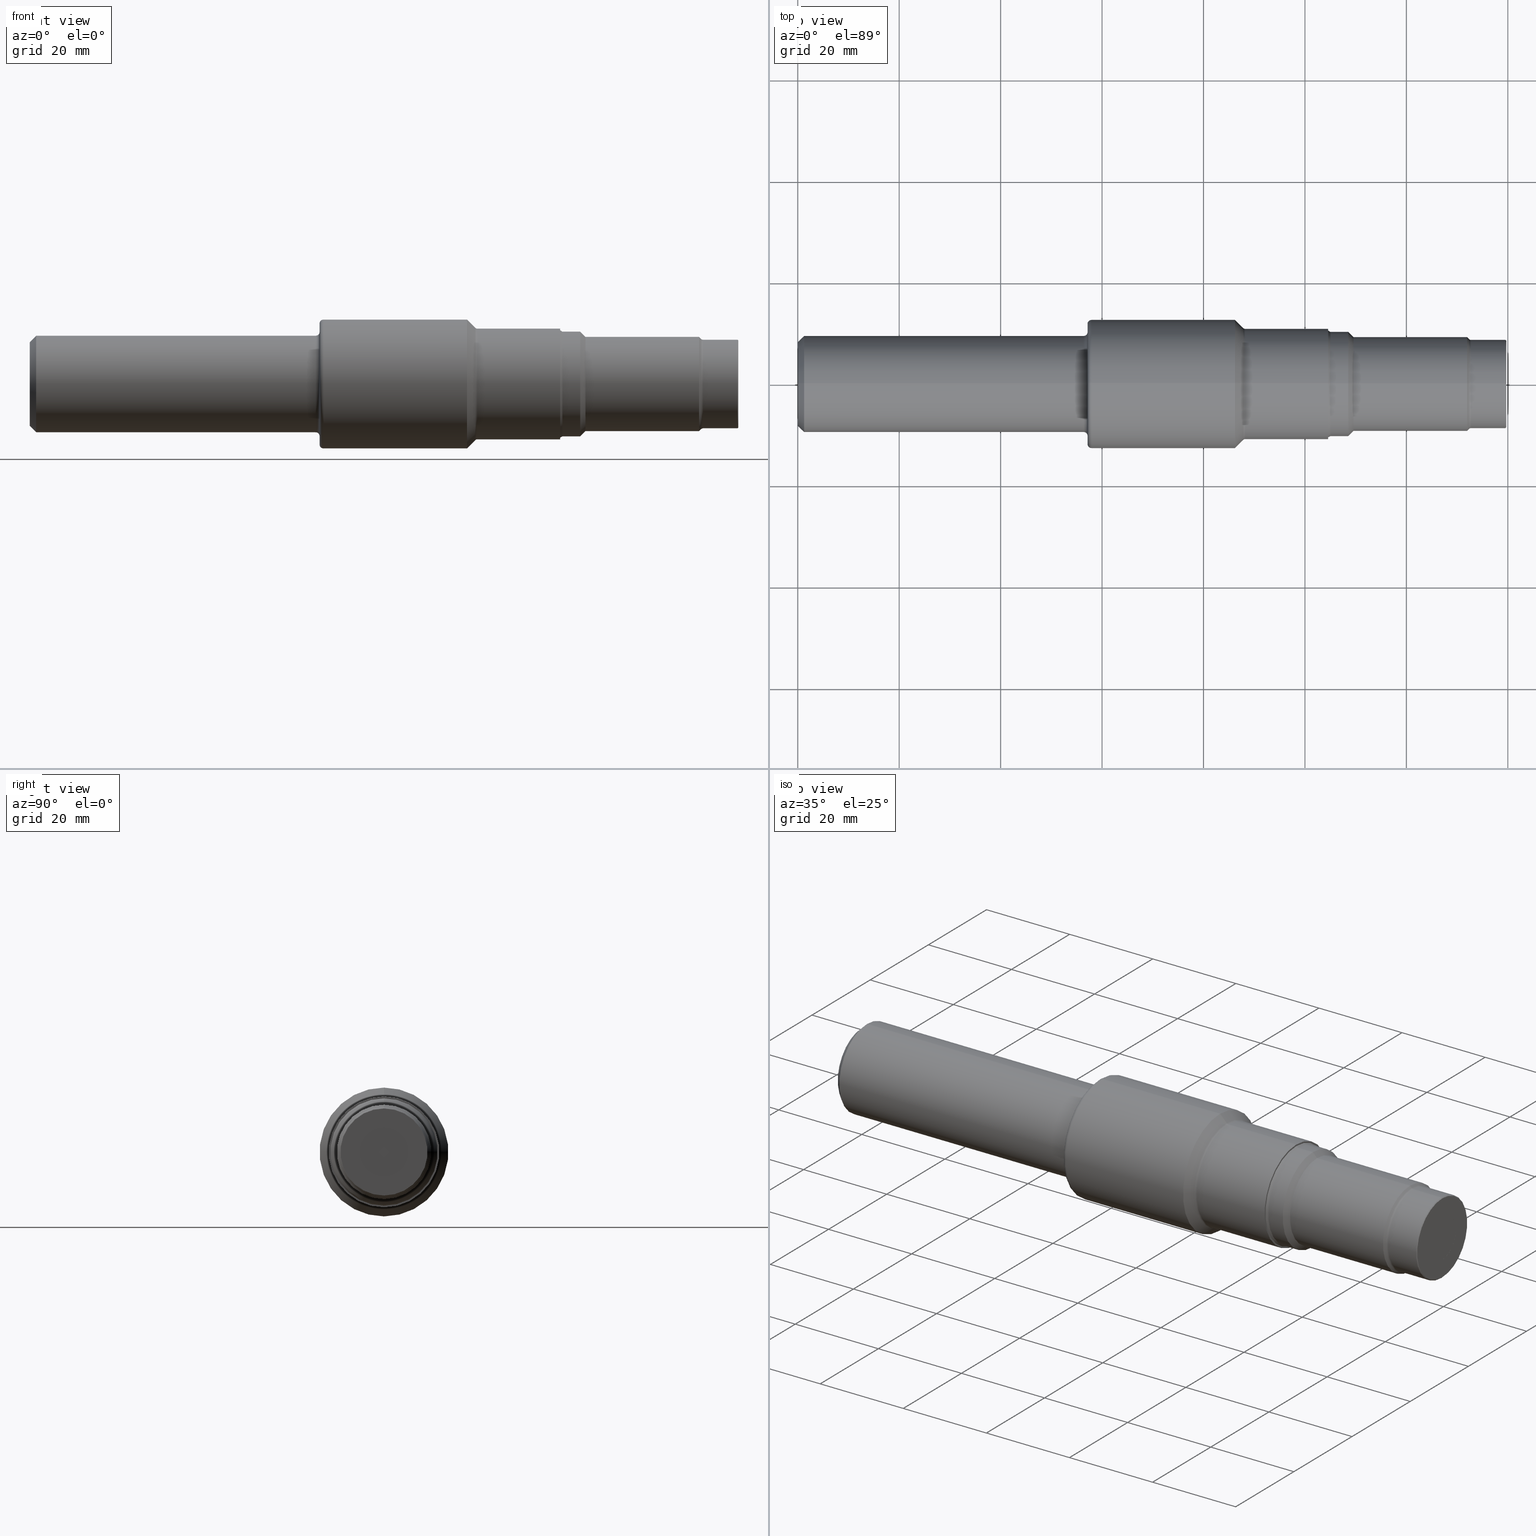
[diagram: canonical four-view strip — front | top / right | iso, engineering-drawing reading convention]
A machine part, canonical four-view strip (front | top / right | iso — engineering-drawing reading convention). The complete STEP part file that produces these views, byte-faithful:
ISO-10303-21;
HEADER;
FILE_DESCRIPTION (( 'STEP AP214' ),
    '1' );
FILE_NAME ('T-11A-FINISH-X8.STEP',
    '2022-06-16T17:11:44',
    ( '' ),
    ( '' ),
    'SwSTEP 2.0',
    'SolidWorks 2020',
    '' );
FILE_SCHEMA (( 'AUTOMOTIVE_DESIGN' ));
ENDSEC;

DATA;
#1 = DIRECTION ( 'NONE',  ( -1.000000000000000000, -0.000000000000000000, -0.000000000000000000 ) ) ;
#2 = AXIS2_PLACEMENT_3D ( 'NONE', #988, #816, #179 ) ;
#3 = CARTESIAN_POINT ( 'NONE',  ( 4.313900000000002066, 0.000000000000000000, 0.000000000000000000 ) ) ;
#4 = PLANE ( 'NONE',  #975 ) ;
#5 = CARTESIAN_POINT ( 'NONE',  ( 5.226712698372208976, 0.000000000000000000, 0.000000000000000000 ) ) ;
#6 = EDGE_CURVE ( 'NONE', #547, #35, #124, .T. ) ;
#7 = CYLINDRICAL_SURFACE ( 'NONE', #243, 0.4063999999999999835 ) ;
#8 = EDGE_CURVE ( 'NONE', #607, #383, #786, .T. ) ;
#9 =( GEOMETRIC_REPRESENTATION_CONTEXT ( 3 ) GLOBAL_UNCERTAINTY_ASSIGNED_CONTEXT ( ( #241 ) ) GLOBAL_UNIT_ASSIGNED_CONTEXT ( ( #286, #290, #535 ) ) REPRESENTATION_CONTEXT ( 'NONE', 'WORKASPACE' ) );
#10 = DIRECTION ( 'NONE',  ( 0.7071067811865489050, 8.659560562354915602E-17, 0.7071067811865461294 ) ) ;
#11 = AXIS2_PLACEMENT_3D ( 'NONE', #916, #194, #517 ) ;
#12 = VERTEX_POINT ( 'NONE', #724 ) ;
#13 = FILL_AREA_STYLE_COLOUR ( '', #496 ) ;
#14 = EDGE_CURVE ( 'NONE', #61, #438, #849, .T. ) ;
#15 = CYLINDRICAL_SURFACE ( 'NONE', #404, 0.3438999999999997059 ) ;
#16 = CARTESIAN_POINT ( 'NONE',  ( 5.500000000000000000, 0.000000000000000000, 0.000000000000000000 ) ) ;
#17 = DIRECTION ( 'NONE',  ( -0.7071067811865471286, 0.000000000000000000, 0.7071067811865479058 ) ) ;
#18 = ORIENTED_EDGE ( 'NONE', *, *, #685, .T. ) ;
#19 = DIRECTION ( 'NONE',  ( -1.000000000000000000, -0.000000000000000000, -0.000000000000000000 ) ) ;
#20 = AXIS2_PLACEMENT_3D ( 'NONE', #890, #192, #903 ) ;
#21 = FACE_OUTER_BOUND ( 'NONE', #433, .T. ) ;
#22 = VERTEX_POINT ( 'NONE', #648 ) ;
#23 = EDGE_LOOP ( 'NONE', ( #104, #740, #467, #114 ) ) ;
#24 = AXIS2_PLACEMENT_3D ( 'NONE', #518, #761, #279 ) ;
#25 = CARTESIAN_POINT ( 'NONE',  ( 5.500000000000000000, 4.174820938293329302E-17, -0.3379000000000003667 ) ) ;
#26 = TOROIDAL_SURFACE ( 'NONE', #819, 0.4519000000000000239, 0.02199999999999997097 ) ;
#27 = DIRECTION ( 'NONE',  ( -1.000000000000000000, -0.000000000000000000, -0.000000000000000000 ) ) ;
#28 = ADVANCED_FACE ( 'NONE', ( #889 ), #653, .T. ) ;
#29 = CARTESIAN_POINT ( 'NONE',  ( 3.458056349186104050, 0.000000000000000000, 0.4363436508138959780 ) ) ;
#30 = CARTESIAN_POINT ( 'NONE',  ( 3.394400000000000084, 0.000000000000000000, 0.000000000000000000 ) ) ;
#31 = ORIENTED_EDGE ( 'NONE', *, *, #621, .F. ) ;
#32 = VERTEX_POINT ( 'NONE', #410 ) ;
#33 = CARTESIAN_POINT ( 'NONE',  ( 4.313900000000002066, 0.000000000000000000, 0.3659999999999999920 ) ) ;
#34 = DIRECTION ( 'NONE',  ( 0.000000000000000000, 0.000000000000000000, 1.000000000000000000 ) ) ;
#35 = VERTEX_POINT ( 'NONE', #403 ) ;
#36 = ORIENTED_EDGE ( 'NONE', *, *, #201, .F. ) ;
#37 = CARTESIAN_POINT ( 'NONE',  ( 4.117499999999999716, 0.000000000000000000, 0.4299000000000000599 ) ) ;
#38 = DIMENSIONAL_EXPONENTS ( 1.000000000000000000, 0.000000000000000000, 0.000000000000000000, 0.000000000000000000, 0.000000000000000000, 0.000000000000000000, 0.000000000000000000 ) ;
#39 = CIRCLE ( 'NONE', #1033, 0.3248500000000002497 ) ;
#40 = DIRECTION ( 'NONE',  ( 0.000000000000000000, 0.000000000000000000, 1.000000000000000000 ) ) ;
#41 = AXIS2_PLACEMENT_3D ( 'NONE', #102, #430, #182 ) ;
#42 = ORIENTED_EDGE ( 'NONE', *, *, #315, .F. ) ;
#43 = ORIENTED_EDGE ( 'NONE', *, *, #945, .T. ) ;
#44 = EDGE_CURVE ( 'NONE', #50, #729, #972, .T. ) ;
#45 = CARTESIAN_POINT ( 'NONE',  ( 2.220000000000000195, 0.000000000000000000, 0.3748500000000000165 ) ) ;
#46 = VERTEX_POINT ( 'NONE', #657 ) ;
#47 = EDGE_CURVE ( 'NONE', #59, #680, #95, .T. ) ;
#48 = DIRECTION ( 'NONE',  ( -1.000000000000000000, -0.000000000000000000, -0.000000000000000000 ) ) ;
#49 = DIRECTION ( 'NONE',  ( -0.7071067811865305863, 8.659560562355139934E-17, -0.7071067811865644481 ) ) ;
#50 = VERTEX_POINT ( 'NONE', #754 ) ;
#51 = DIRECTION ( 'NONE',  ( -1.000000000000000000, -0.000000000000000000, -0.000000000000000000 ) ) ;
#52 = EDGE_CURVE ( 'NONE', #46, #616, #112, .T. ) ;
#53 = ORIENTED_EDGE ( 'NONE', *, *, #678, .F. ) ;
#54 = CARTESIAN_POINT ( 'NONE',  ( 2.279999999999999805, 0.000000000000000000, 0.5000000000000000000 ) ) ;
#55 = CIRCLE ( 'NONE', #703, 0.3379000000000003667 ) ;
#56 = CARTESIAN_POINT ( 'NONE',  ( 4.117499999999999716, 0.000000000000000000, 0.000000000000000000 ) ) ;
#57 = ADVANCED_FACE ( 'NONE', ( #423 ), #662, .T. ) ;
#58 = MECHANICAL_DESIGN_GEOMETRIC_PRESENTATION_REPRESENTATION (  '', ( #374 ), #9 ) ;
#59 = VERTEX_POINT ( 'NONE', #825 ) ;
#60 = LENGTH_MEASURE_WITH_UNIT ( LENGTH_MEASURE( 0.02539999999999999897 ), #220 );
#61 = VERTEX_POINT ( 'NONE', #29 ) ;
#62 = DIRECTION ( 'NONE',  ( 0.000000000000000000, 0.000000000000000000, 1.000000000000000000 ) ) ;
#63 = CARTESIAN_POINT ( 'NONE',  ( 5.493999999999999773, 0.000000000000000000, 0.3438999999999999835 ) ) ;
#64 = CARTESIAN_POINT ( 'NONE',  ( 5.226712698372208976, 0.000000000000000000, 0.000000000000000000 ) ) ;
#65 = DIRECTION ( 'NONE',  ( -1.000000000000000000, -0.000000000000000000, -0.000000000000000000 ) ) ;
#66 = LINE ( 'NONE', #149, #950 ) ;
#67 = ADVANCED_FACE ( 'NONE', ( #745 ), #188, .T. ) ;
#68 = LINE ( 'NONE', #1040, #582 ) ;
#69 =( NAMED_UNIT ( * ) PLANE_ANGLE_UNIT ( ) SI_UNIT ( $, .RADIAN. ) );
#70 = CARTESIAN_POINT ( 'NONE',  ( 5.500000000000000000, 0.000000000000000000, 0.000000000000000000 ) ) ;
#71 = VERTEX_POINT ( 'NONE', #340 ) ;
#72 = FACE_OUTER_BOUND ( 'NONE', #448, .T. ) ;
#73 = TOROIDAL_SURFACE ( 'NONE', #480, 0.3659000000000000030, 0.02200000000000046363 ) ;
#74 = PRODUCT ( 'T-11A-FINISH-X8', 'T-11A-FINISH-X8', '', ( #637 ) ) ;
#75 = DIRECTION ( 'NONE',  ( 0.000000000000000000, 0.000000000000000000, 1.000000000000000000 ) ) ;
#76 = ADVANCED_FACE ( 'NONE', ( #499 ), #752, .T. ) ;
#77 = CARTESIAN_POINT ( 'NONE',  ( 3.473612698372208207, 0.000000000000000000, 0.000000000000000000 ) ) ;
#78 = ORIENTED_EDGE ( 'NONE', *, *, #370, .T. ) ;
#79 = CARTESIAN_POINT ( 'NONE',  ( 0.000000000000000000, 0.000000000000000000, 0.000000000000000000 ) ) ;
#80 = DIRECTION ( 'NONE',  ( -1.000000000000000000, -0.000000000000000000, -0.000000000000000000 ) ) ;
#81 = CARTESIAN_POINT ( 'NONE',  ( 0.000000000000000000, 0.000000000000000000, 0.4299000000000000599 ) ) ;
#82 = DIRECTION ( 'NONE',  ( -1.000000000000000000, -0.000000000000000000, -0.000000000000000000 ) ) ;
#83 = CIRCLE ( 'NONE', #949, 0.3659999999999999920 ) ;
#84 = DIRECTION ( 'NONE',  ( -1.000000000000000000, -0.000000000000000000, -0.000000000000000000 ) ) ;
#85 = FACE_OUTER_BOUND ( 'NONE', #799, .T. ) ;
#86 = DIRECTION ( 'NONE',  ( 0.000000000000000000, 0.000000000000000000, 1.000000000000000000 ) ) ;
#87 = ADVANCED_FACE ( 'NONE', ( #21 ), #677, .T. ) ;
#88 = CIRCLE ( 'NONE', #717, 0.02999999999999995379 ) ;
#89 = PLANE ( 'NONE',  #2 ) ;
#90 = VECTOR ( 'NONE', #1042, 39.37007874015748143 ) ;
#91 = DIRECTION ( 'NONE',  ( -0.7071067811865612285, 0.000000000000000000, 0.7071067811865336949 ) ) ;
#92 = ADVANCED_FACE ( 'NONE', ( #820 ), #349, .T. ) ;
#93 = EDGE_LOOP ( 'NONE', ( #425, #78, #131, #311 ) ) ;
#94 = CARTESIAN_POINT ( 'NONE',  ( 0.000000000000000000, 4.482207284879313290E-17, -0.3659999999999999920 ) ) ;
#95 = LINE ( 'NONE', #437, #773 ) ;
#96 = DIRECTION ( 'NONE',  ( -1.000000000000000000, -0.000000000000000000, -0.000000000000000000 ) ) ;
#97 = ORIENTED_EDGE ( 'NONE', *, *, #52, .T. ) ;
#98 = CARTESIAN_POINT ( 'NONE',  ( 5.226712698372208976, 0.000000000000000000, 0.3659000000000000030 ) ) ;
#99 = EDGE_CURVE ( 'NONE', #839, #1017, #55, .T. ) ;
#100 = CARTESIAN_POINT ( 'NONE',  ( 5.211156349186103931, 0.000000000000000000, 0.000000000000000000 ) ) ;
#101 = LINE ( 'NONE', #511, #884 ) ;
#102 = CARTESIAN_POINT ( 'NONE',  ( 3.473612698372208207, 0.000000000000000000, 0.4519000000000000239 ) ) ;
#103 = EDGE_LOOP ( 'NONE', ( #31, #815, #205, #224 ) ) ;
#104 = ORIENTED_EDGE ( 'NONE', *, *, #249, .T. ) ;
#105 = AXIS2_PLACEMENT_3D ( 'NONE', #691, #918, #195 ) ;
#106 = AXIS2_PLACEMENT_3D ( 'NONE', #530, #129, #706 ) ;
#107 = CARTESIAN_POINT ( 'NONE',  ( 0.000000000000000000, 0.000000000000000000, 0.3659999999999999920 ) ) ;
#108 = CARTESIAN_POINT ( 'NONE',  ( 4.134993713156444706, 0.000000000000000000, 0.000000000000000000 ) ) ;
#109 = ORIENTED_EDGE ( 'NONE', *, *, #379, .F. ) ;
#110 = VERTEX_POINT ( 'NONE', #266 ) ;
#111 = CARTESIAN_POINT ( 'NONE',  ( 3.458056349186104050, 5.343668552975080613E-17, -0.4363436508138959780 ) ) ;
#112 = LINE ( 'NONE', #33, #868 ) ;
#113 = EDGE_CURVE ( 'NONE', #32, #867, #835, .T. ) ;
#114 = ORIENTED_EDGE ( 'NONE', *, *, #6, .F. ) ;
#115 = EDGE_LOOP ( 'NONE', ( #296, #255 ) ) ;
#116 = CONICAL_SURFACE ( 'NONE', #931, 0.4363436508138960335, 0.7853981633974488341 ) ;
#117 = VECTOR ( 'NONE', #153, 39.37007874015748854 ) ;
#118 = CARTESIAN_POINT ( 'NONE',  ( 0.000000000000000000, 0.000000000000000000, 0.000000000000000000 ) ) ;
#119 = TOROIDAL_SURFACE ( 'NONE', #862, 0.4048500000000000432, 0.02999999999999998848 ) ;
#120 = EDGE_LOOP ( 'NONE', ( #513, #851, #793, #1013 ) ) ;
#121 = EDGE_CURVE ( 'NONE', #1043, #204, #554, .T. ) ;
#122 = ORIENTED_EDGE ( 'NONE', *, *, #971, .T. ) ;
#123 = DIRECTION ( 'NONE',  ( -0.8660254037844304920, 6.123233995736938599E-17, -0.5000000000000140998 ) ) ;
#124 = CIRCLE ( 'NONE', #157, 0.03000000000000002318 ) ;
#125 = AXIS2_PLACEMENT_3D ( 'NONE', #366, #698, #942 ) ;
#126 = CIRCLE ( 'NONE', #718, 0.4063999999999999835 ) ;
#127 = ORIENTED_EDGE ( 'NONE', *, *, #436, .T. ) ;
#128 = DIRECTION ( 'NONE',  ( -1.000000000000000000, 0.000000000000000000, -0.000000000000000000 ) ) ;
#129 = DIRECTION ( 'NONE',  ( -1.000000000000000000, -0.000000000000000000, -0.000000000000000000 ) ) ;
#130 = ORIENTED_EDGE ( 'NONE', *, *, #99, .T. ) ;
#131 = ORIENTED_EDGE ( 'NONE', *, *, #654, .F. ) ;
#132 = LINE ( 'NONE', #848, #991 ) ;
#133 = ADVANCED_FACE ( 'NONE', ( #910 ), #358, .T. ) ;
#134 = DIRECTION ( 'NONE',  ( 1.000000000000000000, 0.000000000000000000, 0.000000000000000000 ) ) ;
#135 = FILL_AREA_STYLE_COLOUR ( '', #956 ) ;
#136 = ORIENTED_EDGE ( 'NONE', *, *, #574, .T. ) ;
#137 = ORIENTED_EDGE ( 'NONE', *, *, #44, .T. ) ;
#138 = CIRCLE ( 'NONE', #444, 0.3659999999999999920 ) ;
#139 = MECHANICAL_DESIGN_GEOMETRIC_PRESENTATION_REPRESENTATION (  '', ( #900 ), #155 ) ;
#140 = FACE_OUTER_BOUND ( 'NONE', #609, .T. ) ;
#141 = DIRECTION ( 'NONE',  ( 0.000000000000000000, 0.000000000000000000, 1.000000000000000000 ) ) ;
#142 = CARTESIAN_POINT ( 'NONE',  ( 5.211156349186103931, 0.000000000000000000, 0.3503436508138949579 ) ) ;
#143 = VECTOR ( 'NONE', #541, 39.37007874015748143 ) ;
#144 = AXIS2_PLACEMENT_3D ( 'NONE', #947, #552, #1035 ) ;
#145 = EDGE_LOOP ( 'NONE', ( #316, #938 ) ) ;
#146 = DIRECTION ( 'NONE',  ( 0.000000000000000000, 0.000000000000000000, 1.000000000000000000 ) ) ;
#147 = DIRECTION ( 'NONE',  ( 0.000000000000000000, 0.000000000000000000, 1.000000000000000000 ) ) ;
#148 = EDGE_LOOP ( 'NONE', ( #398, #230, #394, #833 ) ) ;
#149 = CARTESIAN_POINT ( 'NONE',  ( 4.134993713156444706, 0.000000000000000000, 0.4063999999999999835 ) ) ;
#150 = DIRECTION ( 'NONE',  ( 0.000000000000000000, 0.000000000000000000, 1.000000000000000000 ) ) ;
#151 = FACE_OUTER_BOUND ( 'NONE', #362, .T. ) ;
#152 = ORIENTED_EDGE ( 'NONE', *, *, #531, .T. ) ;
#153 = DIRECTION ( 'NONE',  ( -0.7071067811865612285, 8.659560562354763993E-17, -0.7071067811865336949 ) ) ;
#154 = EDGE_CURVE ( 'NONE', #607, #710, #101, .T. ) ;
#155 =( GEOMETRIC_REPRESENTATION_CONTEXT ( 3 ) GLOBAL_UNCERTAINTY_ASSIGNED_CONTEXT ( ( #384 ) ) GLOBAL_UNIT_ASSIGNED_CONTEXT ( ( #381, #69, #526 ) ) REPRESENTATION_CONTEXT ( 'NONE', 'WORKASPACE' ) );
#156 = DIRECTION ( 'NONE',  ( -0.000000000000000000, 1.000000000000000000, 1.224646799147353207E-16 ) ) ;
#157 = AXIS2_PLACEMENT_3D ( 'NONE', #492, #328, #390 ) ;
#158 = DIRECTION ( 'NONE',  ( 0.000000000000000000, 0.000000000000000000, 1.000000000000000000 ) ) ;
#159 = CIRCLE ( 'NONE', #753, 0.4699999999999999734 ) ;
#160 = DIRECTION ( 'NONE',  ( 0.000000000000000000, 0.000000000000000000, 1.000000000000000000 ) ) ;
#161 = AXIS2_PLACEMENT_3D ( 'NONE', #354, #456, #439 ) ;
#162 = CIRCLE ( 'NONE', #803, 0.03000000000000002318 ) ;
#163 = CARTESIAN_POINT ( 'NONE',  ( 3.394400000000000084, 0.000000000000000000, 0.000000000000000000 ) ) ;
#164 = ADVANCED_FACE ( 'NONE', ( #831 ), #601, .T. ) ;
#165 = DIRECTION ( 'NONE',  ( 0.000000000000000000, 0.000000000000000000, 1.000000000000000000 ) ) ;
#166 = DIRECTION ( 'NONE',  ( 0.000000000000000000, 0.000000000000000000, 1.000000000000000000 ) ) ;
#167 = DIRECTION ( 'NONE',  ( -1.000000000000000000, -0.000000000000000000, -0.000000000000000000 ) ) ;
#168 = LINE ( 'NONE', #415, #744 ) ;
#169 = EDGE_CURVE ( 'NONE', #713, #769, #704, .T. ) ;
#170 = ORIENTED_EDGE ( 'NONE', *, *, #47, .F. ) ;
#171 = CARTESIAN_POINT ( 'NONE',  ( 0.000000000000000000, 0.000000000000000000, 0.3748500000000000165 ) ) ;
#172 = AXIS2_PLACEMENT_3D ( 'NONE', #708, #1029, #871 ) ;
#173 = DIRECTION ( 'NONE',  ( 0.000000000000000000, 0.000000000000000000, -1.000000000000000000 ) ) ;
#174 = TOROIDAL_SURFACE ( 'NONE', #812, 0.4699999999999999734, 0.02999999999999998848 ) ;
#175 = LINE ( 'NONE', #94, #229 ) ;
#176 = CARTESIAN_POINT ( 'NONE',  ( 0.000000000000000000, 0.000000000000000000, 0.000000000000000000 ) ) ;
#177 = ORIENTED_EDGE ( 'NONE', *, *, #580, .F. ) ;
#178 = AXIS2_PLACEMENT_3D ( 'NONE', #5, #813, #86 ) ;
#179 = DIRECTION ( 'NONE',  ( -0.000000000000000000, 0.000000000000000000, 1.000000000000000000 ) ) ;
#180 = VECTOR ( 'NONE', #876, 39.37007874015748143 ) ;
#181 = CARTESIAN_POINT ( 'NONE',  ( 3.458056349186104050, 0.000000000000000000, 0.000000000000000000 ) ) ;
#182 = DIRECTION ( 'NONE',  ( 0.000000000000000000, 0.000000000000000000, -1.000000000000000000 ) ) ;
#183 = ORIENTED_EDGE ( 'NONE', *, *, #730, .F. ) ;
#184 = EDGE_CURVE ( 'NONE', #447, #735, #462, .T. ) ;
#185 = CARTESIAN_POINT ( 'NONE',  ( 0.000000000000000000, 0.000000000000000000, 0.000000000000000000 ) ) ;
#186 = CARTESIAN_POINT ( 'NONE',  ( 4.313900000000002066, 0.000000000000000000, 0.000000000000000000 ) ) ;
#187 = DIMENSIONAL_EXPONENTS ( 1.000000000000000000, 0.000000000000000000, 0.000000000000000000, 0.000000000000000000, 0.000000000000000000, 0.000000000000000000, 0.000000000000000000 ) ;
#188 = CYLINDRICAL_SURFACE ( 'NONE', #309, 0.3438999999999997059 ) ;
#189 = ORIENTED_EDGE ( 'NONE', *, *, #500, .T. ) ;
#190 = ORIENTED_EDGE ( 'NONE', *, *, #414, .T. ) ;
#191 = EDGE_CURVE ( 'NONE', #774, #35, #159, .T. ) ;
#192 = DIRECTION ( 'NONE',  ( -1.000000000000000000, -0.000000000000000000, -0.000000000000000000 ) ) ;
#193 = AXIS2_PLACEMENT_3D ( 'NONE', #800, #1037, #644 ) ;
#194 = DIRECTION ( 'NONE',  ( -0.000000000000000000, 1.000000000000000000, 1.224646799147353207E-16 ) ) ;
#195 = DIRECTION ( 'NONE',  ( 0.000000000000000000, 0.000000000000000000, 1.000000000000000000 ) ) ;
#196 = ORIENTED_EDGE ( 'NONE', *, *, #536, .F. ) ;
#197 = ORIENTED_EDGE ( 'NONE', *, *, #154, .F. ) ;
#198 = CLOSED_SHELL ( 'NONE', ( #563, #802, #320, #953, #217, #711, #723, #164, #906, #872, #865, #853, #490, #615, #67, #386, #516, #762, #936, #576, #396, #808, #569, #544, #87, #716, #92, #626, #914, #57, #339, #133, #465, #352, #308, #964, #28, #76, #377 ) ) ;
#199 = EDGE_CURVE ( 'NONE', #1017, #839, #293, .T. ) ;
#200 = CIRCLE ( 'NONE', #787, 0.02200000000000047404 ) ;
#201 = EDGE_CURVE ( 'NONE', #867, #873, #926, .T. ) ;
#202 = DIRECTION ( 'NONE',  ( 0.000000000000000000, 0.000000000000000000, 1.000000000000000000 ) ) ;
#203 = SURFACE_STYLE_USAGE ( .BOTH. , #606 ) ;
#204 = VERTEX_POINT ( 'NONE', #45 ) ;
#205 = ORIENTED_EDGE ( 'NONE', *, *, #6, .T. ) ;
#206 = CARTESIAN_POINT ( 'NONE',  ( 5.211156349186103931, 0.000000000000000000, 0.000000000000000000 ) ) ;
#207 = EDGE_CURVE ( 'NONE', #46, #1022, #432, .T. ) ;
#208 = DIRECTION ( 'NONE',  ( 0.000000000000000000, 0.000000000000000000, 1.000000000000000000 ) ) ;
#209 = ORIENTED_EDGE ( 'NONE', *, *, #580, .T. ) ;
#210 = FACE_OUTER_BOUND ( 'NONE', #502, .T. ) ;
#211 = DIRECTION ( 'NONE',  ( -1.000000000000000000, -0.000000000000000000, -0.000000000000000000 ) ) ;
#212 = ORIENTED_EDGE ( 'NONE', *, *, #760, .F. ) ;
#213 = TOROIDAL_SURFACE ( 'NONE', #734, 0.4048500000000000432, 0.02999999999999998848 ) ;
#214 = DIRECTION ( 'NONE',  ( 0.000000000000000000, 0.000000000000000000, 1.000000000000000000 ) ) ;
#215 = AXIS2_PLACEMENT_3D ( 'NONE', #387, #555, #715 ) ;
#216 = ORIENTED_EDGE ( 'NONE', *, *, #1015, .F. ) ;
#217 = ADVANCED_FACE ( 'NONE', ( #929 ), #454, .T. ) ;
#218 = MANIFOLD_SOLID_BREP ( 'Body', #198 ) ;
#219 = DIRECTION ( 'NONE',  ( -1.000000000000000000, -0.000000000000000000, -0.000000000000000000 ) ) ;
#220 =( LENGTH_UNIT ( ) NAMED_UNIT ( * ) SI_UNIT ( $, .METRE. ) );
#221 = CARTESIAN_POINT ( 'NONE',  ( 2.279999999999999805, 0.000000000000000000, 0.000000000000000000 ) ) ;
#222 = ORIENTED_EDGE ( 'NONE', *, *, #654, .T. ) ;
#223 = DIRECTION ( 'NONE',  ( 0.000000000000000000, 0.000000000000000000, 1.000000000000000000 ) ) ;
#224 = ORIENTED_EDGE ( 'NONE', *, *, #191, .F. ) ;
#225 = AXIS2_PLACEMENT_3D ( 'NONE', #649, #247, #242 ) ;
#226 = DIRECTION ( 'NONE',  ( 0.000000000000000000, -1.224646799147352221E-16, 1.000000000000000000 ) ) ;
#227 = EDGE_CURVE ( 'NONE', #32, #512, #779, .T. ) ;
#228 = DIRECTION ( 'NONE',  ( 1.000000000000000000, 0.000000000000000000, 0.000000000000000000 ) ) ;
#229 = VECTOR ( 'NONE', #265, 39.37007874015748143 ) ;
#230 = ORIENTED_EDGE ( 'NONE', *, *, #8, .F. ) ;
#231 = CARTESIAN_POINT ( 'NONE',  ( 2.220000000000000195, 0.000000000000000000, 0.000000000000000000 ) ) ;
#232 = DIRECTION ( 'NONE',  ( -1.000000000000000000, -0.000000000000000000, -0.000000000000000000 ) ) ;
#233 = FACE_OUTER_BOUND ( 'NONE', #702, .T. ) ;
#234 = EDGE_CURVE ( 'NONE', #204, #1043, #608, .T. ) ;
#235 = EDGE_LOOP ( 'NONE', ( #177, #763, #902, #1008 ) ) ;
#236 = CARTESIAN_POINT ( 'NONE',  ( 4.134993713156444706, 0.000000000000000000, 0.000000000000000000 ) ) ;
#237 = PRODUCT_DEFINITION_SHAPE ( 'NONE', 'NONE',  #506 ) ;
#238 = DIRECTION ( 'NONE',  ( -0.000000000000000000, 1.000000000000000000, 1.224646799147353207E-16 ) ) ;
#239 = AXIS2_PLACEMENT_3D ( 'NONE', #350, #671, #329 ) ;
#240 = ORIENTED_EDGE ( 'NONE', *, *, #795, .F. ) ;
#241 = UNCERTAINTY_MEASURE_WITH_UNIT (LENGTH_MEASURE( 1.000000000000000082E-05 ), #286, 'distance_accuracy_value', 'NONE');
#242 = DIRECTION ( 'NONE',  ( 0.000000000000000000, 0.000000000000000000, 1.000000000000000000 ) ) ;
#243 = AXIS2_PLACEMENT_3D ( 'NONE', #405, #564, #794 ) ;
#244 = EDGE_CURVE ( 'NONE', #461, #547, #1038, .T. ) ;
#245 = CARTESIAN_POINT ( 'NONE',  ( 0.000000000000000000, 4.284426826817016740E-17, 0.3248500000000002497 ) ) ;
#246 = ORIENTED_EDGE ( 'NONE', *, *, #1010, .T. ) ;
#247 = DIRECTION ( 'NONE',  ( -1.000000000000000000, -0.000000000000000000, -0.000000000000000000 ) ) ;
#248 = CIRCLE ( 'NONE', #1007, 0.4048500000000000432 ) ;
#249 = EDGE_CURVE ( 'NONE', #547, #461, #869, .T. ) ;
#250 = CARTESIAN_POINT ( 'NONE',  ( 3.458056349186104050, 0.000000000000000000, 0.000000000000000000 ) ) ;
#251 = DIRECTION ( 'NONE',  ( 0.000000000000000000, 0.000000000000000000, -1.000000000000000000 ) ) ;
#252 = ORIENTED_EDGE ( 'NONE', *, *, #291, .T. ) ;
#253 = FACE_BOUND ( 'NONE', #920, .T. ) ;
#254 = DIRECTION ( 'NONE',  ( -1.000000000000000000, -0.000000000000000000, -0.000000000000000000 ) ) ;
#255 = ORIENTED_EDGE ( 'NONE', *, *, #291, .F. ) ;
#256 = EDGE_LOOP ( 'NONE', ( #43, #269, #834, #911 ) ) ;
#257 = VECTOR ( 'NONE', #84, 39.37007874015748143 ) ;
#258 = DIRECTION ( 'NONE',  ( 0.000000000000000000, 0.000000000000000000, 1.000000000000000000 ) ) ;
#259 = DIRECTION ( 'NONE',  ( 0.000000000000000000, 0.000000000000000000, 1.000000000000000000 ) ) ;
#260 = CARTESIAN_POINT ( 'NONE',  ( 5.211156349186103931, 0.000000000000000000, 0.000000000000000000 ) ) ;
#261 = ORIENTED_EDGE ( 'NONE', *, *, #980, .F. ) ;
#262 = AXIS2_PLACEMENT_3D ( 'NONE', #566, #572, #158 ) ;
#263 = CIRCLE ( 'NONE', #106, 0.4363436508138960335 ) ;
#264 = CARTESIAN_POINT ( 'NONE',  ( 0.000000000000000000, 0.000000000000000000, 0.000000000000000000 ) ) ;
#265 = DIRECTION ( 'NONE',  ( -1.000000000000000000, -0.000000000000000000, -0.000000000000000000 ) ) ;
#266 = CARTESIAN_POINT ( 'NONE',  ( 4.117499999999999716, 5.100653918448725907E-17, -0.4164999999999999813 ) ) ;
#267 = EDGE_CURVE ( 'NONE', #664, #527, #411, .T. ) ;
#268 = CARTESIAN_POINT ( 'NONE',  ( 5.500000000000000000, 0.000000000000000000, 0.3379000000000003667 ) ) ;
#269 = ORIENTED_EDGE ( 'NONE', *, *, #597, .T. ) ;
#270 = ORIENTED_EDGE ( 'NONE', *, *, #971, .F. ) ;
#271 = CYLINDRICAL_SURFACE ( 'NONE', #493, 0.3659999999999999920 ) ;
#272 = DIRECTION ( 'NONE',  ( 0.000000000000000000, 0.000000000000000000, 1.000000000000000000 ) ) ;
#273 = DIRECTION ( 'NONE',  ( -1.000000000000000000, -0.000000000000000000, -0.000000000000000000 ) ) ;
#274 = DIRECTION ( 'NONE',  ( -1.000000000000000000, -0.000000000000000000, -0.000000000000000000 ) ) ;
#275 = ORIENTED_EDGE ( 'NONE', *, *, #121, .T. ) ;
#276 = EDGE_CURVE ( 'NONE', #204, #22, #88, .T. ) ;
#277 = AXIS2_PLACEMENT_3D ( 'NONE', #163, #952, #150 ) ;
#278 = VECTOR ( 'NONE', #520, 39.37007874015748143 ) ;
#279 = DIRECTION ( 'NONE',  ( 0.000000000000000000, 0.000000000000000000, -1.000000000000000000 ) ) ;
#280 = SURFACE_STYLE_FILL_AREA ( #993 ) ;
#281 = ORIENTED_EDGE ( 'NONE', *, *, #669, .T. ) ;
#282 = ORIENTED_EDGE ( 'NONE', *, *, #841, .F. ) ;
#283 = EDGE_CURVE ( 'NONE', #438, #61, #263, .T. ) ;
#284 = AXIS2_PLACEMENT_3D ( 'NONE', #285, #935, #612 ) ;
#285 = CARTESIAN_POINT ( 'NONE',  ( 2.279999999999999805, 0.000000000000000000, 0.000000000000000000 ) ) ;
#286 =( CONVERSION_BASED_UNIT ( 'INCH', #1011 ) LENGTH_UNIT ( ) NAMED_UNIT ( #187 ) );
#287 = ORIENTED_EDGE ( 'NONE', *, *, #113, .T. ) ;
#288 = DIRECTION ( 'NONE',  ( -1.000000000000000000, -0.000000000000000000, -0.000000000000000000 ) ) ;
#289 = AXIS2_PLACEMENT_3D ( 'NONE', #791, #958, #75 ) ;
#290 =( NAMED_UNIT ( * ) PLANE_ANGLE_UNIT ( ) SI_UNIT ( $, .RADIAN. ) );
#291 = EDGE_CURVE ( 'NONE', #614, #22, #248, .T. ) ;
#292 = ORIENTED_EDGE ( 'NONE', *, *, #169, .F. ) ;
#293 = CIRCLE ( 'NONE', #989, 0.3379000000000003667 ) ;
#294 = VECTOR ( 'NONE', #896, 39.37007874015748143 ) ;
#295 = VECTOR ( 'NONE', #51, 39.37007874015748143 ) ;
#296 = ORIENTED_EDGE ( 'NONE', *, *, #531, .F. ) ;
#297 = DIRECTION ( 'NONE',  ( 0.000000000000000000, 0.000000000000000000, 1.000000000000000000 ) ) ;
#298 = CARTESIAN_POINT ( 'NONE',  ( 2.250000000000000000, 0.000000000000000000, 0.000000000000000000 ) ) ;
#299 = ORIENTED_EDGE ( 'NONE', *, *, #44, .F. ) ;
#300 = PRODUCT_DEFINITION_CONTEXT ( 'detailed design', #913, 'design' ) ;
#301 = EDGE_CURVE ( 'NONE', #1043, #614, #870, .T. ) ;
#302 = DIRECTION ( 'NONE',  ( 0.000000000000000000, 0.000000000000000000, 1.000000000000000000 ) ) ;
#303 = CIRCLE ( 'NONE', #534, 0.4699999999999999734 ) ;
#304 = DIRECTION ( 'NONE',  ( 0.000000000000000000, 0.000000000000000000, 1.000000000000000000 ) ) ;
#305 = ORIENTED_EDGE ( 'NONE', *, *, #184, .T. ) ;
#306 = DIRECTION ( 'NONE',  ( 0.000000000000000000, 0.000000000000000000, 1.000000000000000000 ) ) ;
#307 = CARTESIAN_POINT ( 'NONE',  ( 2.279999999999999805, 5.755839955992559655E-17, -0.4699999999999999734 ) ) ;
#308 = ADVANCED_FACE ( 'NONE', ( #976, #233 ), #4, .F. ) ;
#309 = AXIS2_PLACEMENT_3D ( 'NONE', #738, #595, #899 ) ;
#310 = CARTESIAN_POINT ( 'NONE',  ( 0.05000000000000000278, 0.000000000000000000, 0.000000000000000000 ) ) ;
#311 = ORIENTED_EDGE ( 'NONE', *, *, #930, .F. ) ;
#312 = CYLINDRICAL_SURFACE ( 'NONE', #967, 0.1875000000000000555 ) ;
#313 = CARTESIAN_POINT ( 'NONE',  ( 2.250000000000000000, 0.000000000000000000, 0.000000000000000000 ) ) ;
#314 = CARTESIAN_POINT ( 'NONE',  ( 3.394400000000000084, 0.000000000000000000, 0.5000000000000000000 ) ) ;
#315 = EDGE_CURVE ( 'NONE', #729, #50, #343, .T. ) ;
#316 = ORIENTED_EDGE ( 'NONE', *, *, #750, .F. ) ;
#317 = CARTESIAN_POINT ( 'NONE',  ( 0.000000000000000000, 0.000000000000000000, 0.5000000000000000000 ) ) ;
#318 = DIRECTION ( 'NONE',  ( -1.000000000000000000, -0.000000000000000000, -0.000000000000000000 ) ) ;
#319 = DIRECTION ( 'NONE',  ( 0.000000000000000000, 0.000000000000000000, 1.000000000000000000 ) ) ;
#320 = ADVANCED_FACE ( 'NONE', ( #85 ), #213, .F. ) ;
#321 = AXIS2_PLACEMENT_3D ( 'NONE', #98, #488, #173 ) ;
#322 = DIRECTION ( 'NONE',  ( -1.000000000000000000, -0.000000000000000000, -0.000000000000000000 ) ) ;
#323 = DIRECTION ( 'NONE',  ( 0.000000000000000000, 0.000000000000000000, 1.000000000000000000 ) ) ;
#324 = CARTESIAN_POINT ( 'NONE',  ( 5.499900000000000233, 0.000000000000000000, 0.000000000000000000 ) ) ;
#325 = ORIENTED_EDGE ( 'NONE', *, *, #611, .F. ) ;
#326 = AXIS2_PLACEMENT_3D ( 'NONE', #70, #392, #165 ) ;
#327 = DIRECTION ( 'NONE',  ( 0.000000000000000000, 0.000000000000000000, 1.000000000000000000 ) ) ;
#328 = DIRECTION ( 'NONE',  ( 0.000000000000000000, -1.000000000000000000, 0.000000000000000000 ) ) ;
#329 = DIRECTION ( 'NONE',  ( 0.000000000000000000, 0.000000000000000000, 1.000000000000000000 ) ) ;
#330 = DIRECTION ( 'NONE',  ( 0.000000000000000000, 0.000000000000000000, 1.000000000000000000 ) ) ;
#331 = EDGE_CURVE ( 'NONE', #527, #769, #389, .T. ) ;
#332 = DIRECTION ( 'NONE',  ( 0.000000000000000000, 0.000000000000000000, 1.000000000000000000 ) ) ;
#333 = DIRECTION ( 'NONE',  ( 0.000000000000000000, 0.000000000000000000, 1.000000000000000000 ) ) ;
#334 = CARTESIAN_POINT ( 'NONE',  ( 2.220000000000000195, 4.774285546475956938E-17, -0.3748500000000000165 ) ) ;
#335 = EDGE_LOOP ( 'NONE', ( #856, #336, #451, #954 ) ) ;
#336 = ORIENTED_EDGE ( 'NONE', *, *, #449, .T. ) ;
#337 = AXIS2_PLACEMENT_3D ( 'NONE', #473, #80, #796 ) ;
#338 = DIRECTION ( 'NONE',  ( -1.000000000000000000, -0.000000000000000000, -0.000000000000000000 ) ) ;
#339 = ADVANCED_FACE ( 'NONE', ( #811 ), #26, .F. ) ;
#340 = CARTESIAN_POINT ( 'NONE',  ( 5.499900000000000233, 2.296212748401288034E-17, -0.1875000000000000555 ) ) ;
#341 = ORIENTED_EDGE ( 'NONE', *, *, #459, .F. ) ;
#342 = AXIS2_PLACEMENT_3D ( 'NONE', #589, #273, #905 ) ;
#343 = CIRCLE ( 'NONE', #705, 0.3438999999999994839 ) ;
#344 = CARTESIAN_POINT ( 'NONE',  ( 0.000000000000000000, 0.000000000000000000, 0.4063999999999999835 ) ) ;
#345 = AXIS2_PLACEMENT_3D ( 'NONE', #627, #946, #223 ) ;
#346 = CARTESIAN_POINT ( 'NONE',  ( 0.000000000000000000, 0.000000000000000000, 0.000000000000000000 ) ) ;
#347 = ORIENTED_EDGE ( 'NONE', *, *, #301, .T. ) ;
#348 = VERTEX_POINT ( 'NONE', #888 ) ;
#349 = CYLINDRICAL_SURFACE ( 'NONE', #921, 0.4063999999999999835 ) ;
#350 = CARTESIAN_POINT ( 'NONE',  ( 3.473612698372208207, 0.000000000000000000, 0.000000000000000000 ) ) ;
#351 = ORIENTED_EDGE ( 'NONE', *, *, #121, .F. ) ;
#352 = ADVANCED_FACE ( 'NONE', ( #561 ), #693, .T. ) ;
#353 = ORIENTED_EDGE ( 'NONE', *, *, #365, .F. ) ;
#354 = CARTESIAN_POINT ( 'NONE',  ( 0.05000000000000000278, 0.000000000000000000, 0.000000000000000000 ) ) ;
#355 = CARTESIAN_POINT ( 'NONE',  ( 2.250000000000000000, 0.000000000000000000, 0.000000000000000000 ) ) ;
#356 = VERTEX_POINT ( 'NONE', #314 ) ;
#357 = AXIS2_PLACEMENT_3D ( 'NONE', #1047, #82, #319 ) ;
#358 = CONICAL_SURFACE ( 'NONE', #479, 0.4363436508138960335, 0.7853981633974488341 ) ;
#359 = CONICAL_SURFACE ( 'NONE', #326, 0.3379000000000003667, 0.7853981633974255194 ) ;
#360 = FACE_OUTER_BOUND ( 'NONE', #697, .T. ) ;
#361 = SURFACE_SIDE_STYLE ('',( #1025 ) ) ;
#362 = EDGE_LOOP ( 'NONE', ( #981, #847 ) ) ;
#363 = ORIENTED_EDGE ( 'NONE', *, *, #301, .F. ) ;
#364 = DIRECTION ( 'NONE',  ( 0.000000000000000000, 0.000000000000000000, 1.000000000000000000 ) ) ;
#365 = EDGE_CURVE ( 'NONE', #710, #424, #937, .T. ) ;
#366 = CARTESIAN_POINT ( 'NONE',  ( 2.220000000000000195, 0.000000000000000000, 0.000000000000000000 ) ) ;
#367 = EDGE_LOOP ( 'NONE', ( #261, #969, #190, #299 ) ) ;
#368 = DIRECTION ( 'NONE',  ( 0.000000000000000000, 0.000000000000000000, 1.000000000000000000 ) ) ;
#369 = TOROIDAL_SURFACE ( 'NONE', #20, 0.4519000000000000239, 0.02199999999999997097 ) ;
#370 = EDGE_CURVE ( 'NONE', #1043, #710, #722, .T. ) ;
#371 = CARTESIAN_POINT ( 'NONE',  ( 5.211156349186103931, 4.290472305708344396E-17, -0.3503436508138949579 ) ) ;
#372 = EDGE_LOOP ( 'NONE', ( #908, #472 ) ) ;
#373 = CARTESIAN_POINT ( 'NONE',  ( 0.000000000000000000, 0.000000000000000000, -0.3248500000000002497 ) ) ;
#374 = STYLED_ITEM ( 'NONE', ( #619 ), #218 ) ;
#375 = CONICAL_SURFACE ( 'NONE', #539, 0.3379000000000003667, 0.7853981633974255194 ) ;
#376 = DIRECTION ( 'NONE',  ( 0.000000000000000000, -1.000000000000000000, 0.000000000000000000 ) ) ;
#377 = ADVANCED_FACE ( 'NONE', ( #151 ), #408, .F. ) ;
#378 = ORIENTED_EDGE ( 'NONE', *, *, #980, .T. ) ;
#379 = EDGE_CURVE ( 'NONE', #32, #50, #200, .T. ) ;
#380 = FACE_OUTER_BOUND ( 'NONE', #532, .T. ) ;
#381 =( CONVERSION_BASED_UNIT ( 'INCH', #60 ) LENGTH_UNIT ( ) NAMED_UNIT ( #38 ) );
#382 = DIRECTION ( 'NONE',  ( -1.000000000000000000, -0.000000000000000000, -0.000000000000000000 ) ) ;
#383 = VERTEX_POINT ( 'NONE', #245 ) ;
#384 = UNCERTAINTY_MEASURE_WITH_UNIT (LENGTH_MEASURE( 1.000000000000000082E-05 ), #381, 'distance_accuracy_value', 'NONE');
#385 = CARTESIAN_POINT ( 'NONE',  ( 5.195500000000000007, 0.000000000000000000, 0.3659999999999999920 ) ) ;
#386 = ADVANCED_FACE ( 'NONE', ( #792 ), #375, .T. ) ;
#387 = CARTESIAN_POINT ( 'NONE',  ( 5.226712698372208976, 0.000000000000000000, 0.000000000000000000 ) ) ;
#388 = VECTOR ( 'NONE', #636, 39.37007874015748143 ) ;
#389 = LINE ( 'NONE', #81, #180 ) ;
#390 = DIRECTION ( 'NONE',  ( 0.000000000000000000, 0.000000000000000000, -1.000000000000000000 ) ) ;
#391 = PLANE ( 'NONE',  #193 ) ;
#392 = DIRECTION ( 'NONE',  ( -1.000000000000000000, -0.000000000000000000, -0.000000000000000000 ) ) ;
#393 = AXIS2_PLACEMENT_3D ( 'NONE', #206, #540, #368 ) ;
#394 = ORIENTED_EDGE ( 'NONE', *, *, #154, .T. ) ;
#395 = DIRECTION ( 'NONE',  ( -1.000000000000000000, -0.000000000000000000, -0.000000000000000000 ) ) ;
#396 = ADVANCED_FACE ( 'NONE', ( #798 ), #359, .T. ) ;
#397 = DIRECTION ( 'NONE',  ( -1.000000000000000000, -0.000000000000000000, -0.000000000000000000 ) ) ;
#398 = ORIENTED_EDGE ( 'NONE', *, *, #846, .F. ) ;
#399 = CARTESIAN_POINT ( 'NONE',  ( 5.211156349186103931, 0.000000000000000000, 0.3503436508138952910 ) ) ;
#400 = CARTESIAN_POINT ( 'NONE',  ( 3.473612698372208207, 5.264756589534471859E-17, -0.4299000000000000599 ) ) ;
#401 = DIRECTION ( 'NONE',  ( 0.000000000000000000, -1.224646799147352221E-16, 1.000000000000000000 ) ) ;
#402 = AXIS2_PLACEMENT_3D ( 'NONE', #497, #254, #579 ) ;
#403 = CARTESIAN_POINT ( 'NONE',  ( 2.250000000000000000, 0.000000000000000000, 0.4699999999999999734 ) ) ;
#404 = AXIS2_PLACEMENT_3D ( 'NONE', #185, #338, #330 ) ;
#405 = CARTESIAN_POINT ( 'NONE',  ( 0.000000000000000000, 0.000000000000000000, 0.000000000000000000 ) ) ;
#406 = AXIS2_PLACEMENT_3D ( 'NONE', #471, #167, #306 ) ;
#407 = CARTESIAN_POINT ( 'NONE',  ( 5.195500000000000007, 0.000000000000000000, 0.000000000000000000 ) ) ;
#408 = PLANE ( 'NONE',  #501 ) ;
#409 = AXIS2_PLACEMENT_3D ( 'NONE', #260, #682, #333 ) ;
#410 = CARTESIAN_POINT ( 'NONE',  ( 5.211156349186103931, 4.290472305708348710E-17, -0.3503436508138952910 ) ) ;
#411 = CIRCLE ( 'NONE', #556, 0.4299000000000000599 ) ;
#412 = DIRECTION ( 'NONE',  ( -1.000000000000000000, -0.000000000000000000, -0.000000000000000000 ) ) ;
#413 = AXIS2_PLACEMENT_3D ( 'NONE', #804, #397, #880 ) ;
#414 = EDGE_CURVE ( 'NONE', #687, #729, #727, .T. ) ;
#415 = CARTESIAN_POINT ( 'NONE',  ( 3.458056349186104050, 5.343668552975081229E-17, -0.4363436508138960335 ) ) ;
#416 = DIRECTION ( 'NONE',  ( -1.000000000000000000, -0.000000000000000000, -0.000000000000000000 ) ) ;
#417 = LINE ( 'NONE', #924, #951 ) ;
#418 = ORIENTED_EDGE ( 'NONE', *, *, #227, .F. ) ;
#419 = ORIENTED_EDGE ( 'NONE', *, *, #283, .F. ) ;
#420 = EDGE_CURVE ( 'NONE', #71, #680, #886, .T. ) ;
#421 = LINE ( 'NONE', #675, #443 ) ;
#422 = CARTESIAN_POINT ( 'NONE',  ( 5.500000000000000000, 0.000000000000000000, 0.000000000000000000 ) ) ;
#423 = FACE_OUTER_BOUND ( 'NONE', #508, .T. ) ;
#424 = VERTEX_POINT ( 'NONE', #656 ) ;
#425 = ORIENTED_EDGE ( 'NONE', *, *, #234, .T. ) ;
#426 = CIRCLE ( 'NONE', #277, 0.5000000000000000000 ) ;
#427 = FACE_OUTER_BOUND ( 'NONE', #145, .T. ) ;
#428 = AXIS2_PLACEMENT_3D ( 'NONE', #858, #141, #134 ) ;
#429 = CARTESIAN_POINT ( 'NONE',  ( 0.000000000000000000, 0.000000000000000000, 0.000000000000000000 ) ) ;
#430 = DIRECTION ( 'NONE',  ( 0.000000000000000000, -1.000000000000000000, 0.000000000000000000 ) ) ;
#431 = ORIENTED_EDGE ( 'NONE', *, *, #169, .T. ) ;
#432 = CIRCLE ( 'NONE', #733, 0.3659999999999999920 ) ;
#433 = EDGE_LOOP ( 'NONE', ( #860, #620, #542, #747 ) ) ;
#434 = CIRCLE ( 'NONE', #1021, 0.4164999999999999813 ) ;
#435 = DIRECTION ( 'NONE',  ( -1.000000000000000000, -0.000000000000000000, -0.000000000000000000 ) ) ;
#436 = EDGE_CURVE ( 'NONE', #1022, #46, #623, .T. ) ;
#437 = CARTESIAN_POINT ( 'NONE',  ( 0.000000000000000000, 0.000000000000000000, 0.1875000000000000555 ) ) ;
#438 = VERTEX_POINT ( 'NONE', #111 ) ;
#439 = DIRECTION ( 'NONE',  ( 0.000000000000000000, 0.000000000000000000, -1.000000000000000000 ) ) ;
#440 = DIRECTION ( 'NONE',  ( -1.000000000000000000, -0.000000000000000000, -0.000000000000000000 ) ) ;
#441 = ORIENTED_EDGE ( 'NONE', *, *, #944, .T. ) ;
#442 = ORIENTED_EDGE ( 'NONE', *, *, #685, .F. ) ;
#443 = VECTOR ( 'NONE', #10, 39.37007874015748143 ) ;
#444 = AXIS2_PLACEMENT_3D ( 'NONE', #998, #412, #34 ) ;
#445 = CARTESIAN_POINT ( 'NONE',  ( 0.000000000000000000, 0.000000000000000000, 0.000000000000000000 ) ) ;
#446 = FILL_AREA_STYLE ('',( #135 ) ) ;
#447 = VERTEX_POINT ( 'NONE', #751 ) ;
#448 = EDGE_LOOP ( 'NONE', ( #305, #892, #53, #741 ) ) ;
#449 = EDGE_CURVE ( 'NONE', #512, #1022, #175, .T. ) ;
#450 = AXIS2_PLACEMENT_3D ( 'NONE', #100, #27, #272 ) ;
#451 = ORIENTED_EDGE ( 'NONE', *, *, #207, .F. ) ;
#452 = EDGE_CURVE ( 'NONE', #12, #59, #957, .T. ) ;
#453 = DIRECTION ( 'NONE',  ( -1.000000000000000000, -0.000000000000000000, -0.000000000000000000 ) ) ;
#454 = CYLINDRICAL_SURFACE ( 'NONE', #570, 0.5000000000000000000 ) ;
#455 = ORIENTED_EDGE ( 'NONE', *, *, #199, .F. ) ;
#456 = DIRECTION ( 'NONE',  ( 1.000000000000000000, 0.000000000000000000, 0.000000000000000000 ) ) ;
#457 = CIRCLE ( 'NONE', #767, 0.3748500000000000165 ) ;
#458 = APPLICATION_PROTOCOL_DEFINITION ( 'draft international standard', 'automotive_design', 1998, #913 ) ;
#459 = EDGE_CURVE ( 'NONE', #482, #735, #594, .T. ) ;
#460 = CARTESIAN_POINT ( 'NONE',  ( 2.220000000000000195, 0.000000000000000000, 0.4048500000000000432 ) ) ;
#461 = VERTEX_POINT ( 'NONE', #498 ) ;
#462 = CIRCLE ( 'NONE', #622, 0.4063999999999999835 ) ;
#463 = AXIS2_PLACEMENT_3D ( 'NONE', #422, #581, #818 ) ;
#464 = DIRECTION ( 'NONE',  ( 0.000000000000000000, 0.000000000000000000, 1.000000000000000000 ) ) ;
#465 = ADVANCED_FACE ( 'NONE', ( #668 ), #676, .T. ) ;
#466 = EDGE_LOOP ( 'NONE', ( #246, #378, #42, #665 ) ) ;
#467 = ORIENTED_EDGE ( 'NONE', *, *, #669, .F. ) ;
#468 = CARTESIAN_POINT ( 'NONE',  ( 3.394400000000000084, 6.123233995736766036E-17, -0.5000000000000000000 ) ) ;
#469 = CARTESIAN_POINT ( 'NONE',  ( 0.000000000000000000, 0.000000000000000000, 0.000000000000000000 ) ) ;
#470 = CARTESIAN_POINT ( 'NONE',  ( 0.000000000000000000, 0.000000000000000000, 0.000000000000000000 ) ) ;
#471 = CARTESIAN_POINT ( 'NONE',  ( 5.493999999999999773, 0.000000000000000000, 0.000000000000000000 ) ) ;
#472 = ORIENTED_EDGE ( 'NONE', *, *, #267, .F. ) ;
#473 = CARTESIAN_POINT ( 'NONE',  ( 5.211156349186103931, 0.000000000000000000, 0.000000000000000000 ) ) ;
#474 = DIRECTION ( 'NONE',  ( 1.000000000000000000, 0.000000000000000000, 0.000000000000000000 ) ) ;
#475 = ORIENTED_EDGE ( 'NONE', *, *, #52, .F. ) ;
#476 = DIRECTION ( 'NONE',  ( -1.000000000000000000, -0.000000000000000000, -0.000000000000000000 ) ) ;
#477 = EDGE_CURVE ( 'NONE', #873, #46, #743, .T. ) ;
#478 = AXIS2_PLACEMENT_3D ( 'NONE', #176, #605, #583 ) ;
#479 = AXIS2_PLACEMENT_3D ( 'NONE', #181, #1001, #922 ) ;
#480 = AXIS2_PLACEMENT_3D ( 'NONE', #775, #48, #364 ) ;
#481 = TOROIDAL_SURFACE ( 'NONE', #215, 0.3659000000000000030, 0.02200000000000046363 ) ;
#482 = VERTEX_POINT ( 'NONE', #510 ) ;
#483 = UNCERTAINTY_MEASURE_WITH_UNIT (LENGTH_MEASURE( 1.000000000000000082E-05 ), #602, 'distance_accuracy_value', 'NONE');
#484 = CARTESIAN_POINT ( 'NONE',  ( 0.05000000000000000278, 4.590588526603853748E-17, -0.3748500000000000165 ) ) ;
#485 = CARTESIAN_POINT ( 'NONE',  ( 0.000000000000000000, 4.590588526603853748E-17, -0.3748500000000000165 ) ) ;
#486 = ORIENTED_EDGE ( 'NONE', *, *, #959, .F. ) ;
#487 = FACE_OUTER_BOUND ( 'NONE', #999, .T. ) ;
#488 = DIRECTION ( 'NONE',  ( 0.000000000000000000, -1.000000000000000000, 0.000000000000000000 ) ) ;
#489 = CARTESIAN_POINT ( 'NONE',  ( 2.220000000000000195, 0.000000000000000000, 0.000000000000000000 ) ) ;
#490 = ADVANCED_FACE ( 'NONE', ( #829 ), #904, .T. ) ;
#491 = CONICAL_SURFACE ( 'NONE', #617, 0.3659999999999999920, 0.7853981633974288501 ) ;
#492 = CARTESIAN_POINT ( 'NONE',  ( 2.279999999999999805, 0.000000000000000000, 0.4699999999999999734 ) ) ;
#493 = AXIS2_PLACEMENT_3D ( 'NONE', #599, #915, #327 ) ;
#494 = CARTESIAN_POINT ( 'NONE',  ( 4.313900000000002066, 4.482207284879313290E-17, -0.3659999999999999920 ) ) ;
#495 = CIRCLE ( 'NONE', #41, 0.02199999999999999872 ) ;
#496 = COLOUR_RGB ( '',0.7529411764705882248, 0.7529411764705882248, 0.7529411764705882248 ) ;
#497 = CARTESIAN_POINT ( 'NONE',  ( 4.273500000000000298, 0.000000000000000000, 0.000000000000000000 ) ) ;
#498 = CARTESIAN_POINT ( 'NONE',  ( 2.279999999999999805, 6.123233995736766036E-17, -0.5000000000000000000 ) ) ;
#499 = FACE_OUTER_BOUND ( 'NONE', #148, .T. ) ;
#500 = EDGE_CURVE ( 'NONE', #438, #713, #923, .T. ) ;
#501 = AXIS2_PLACEMENT_3D ( 'NONE', #469, #474, #962 ) ;
#502 = EDGE_LOOP ( 'NONE', ( #748, #209, #925, #170 ) ) ;
#503 = FACE_OUTER_BOUND ( 'NONE', #93, .T. ) ;
#504 = DIRECTION ( 'NONE',  ( 0.000000000000000000, 0.000000000000000000, 1.000000000000000000 ) ) ;
#505 = DIRECTION ( 'NONE',  ( -1.000000000000000000, -0.000000000000000000, -0.000000000000000000 ) ) ;
#506 = PRODUCT_DEFINITION ( 'UNKNOWN', '', #567, #300 ) ;
#507 = ORIENTED_EDGE ( 'NONE', *, *, #944, .F. ) ;
#508 = EDGE_LOOP ( 'NONE', ( #948, #707, #843, #292 ) ) ;
#509 = DIRECTION ( 'NONE',  ( -1.000000000000000000, -0.000000000000000000, -0.000000000000000000 ) ) ;
#510 = CARTESIAN_POINT ( 'NONE',  ( 4.273500000000000298, 4.976964591734843260E-17, -0.4063999999999999835 ) ) ;
#511 = CARTESIAN_POINT ( 'NONE',  ( 0.05000000000000000278, 0.000000000000000000, -0.3748500000000000165 ) ) ;
#512 = VERTEX_POINT ( 'NONE', #1024 ) ;
#513 = ORIENTED_EDGE ( 'NONE', *, *, #500, .F. ) ;
#514 = CIRCLE ( 'NONE', #917, 0.1875000000000000555 ) ;
#515 = CIRCLE ( 'NONE', #225, 0.4299000000000000599 ) ;
#516 = ADVANCED_FACE ( 'NONE', ( #210 ), #1014, .F. ) ;
#517 = DIRECTION ( 'NONE',  ( 0.000000000000000000, -1.224646799147351235E-16, 1.000000000000000000 ) ) ;
#518 = CARTESIAN_POINT ( 'NONE',  ( 0.05000000000000000278, 0.000000000000000000, 0.000000000000000000 ) ) ;
#519 = AXIS2_PLACEMENT_3D ( 'NONE', #429, #670, #997 ) ;
#520 = DIRECTION ( 'NONE',  ( -0.7071067811865636710, 8.659560562354735643E-17, -0.7071067811865313635 ) ) ;
#521 = ORIENTED_EDGE ( 'NONE', *, *, #1041, .F. ) ;
#522 = AXIS2_PLACEMENT_3D ( 'NONE', #836, #440, #766 ) ;
#523 = EDGE_LOOP ( 'NONE', ( #844, #861 ) ) ;
#524 = AXIS2_PLACEMENT_3D ( 'NONE', #324, #651, #332 ) ;
#525 = DIRECTION ( 'NONE',  ( 0.7071067811865489050, 0.000000000000000000, -0.7071067811865461294 ) ) ;
#526 =( NAMED_UNIT ( * ) SI_UNIT ( $, .STERADIAN. ) SOLID_ANGLE_UNIT ( ) );
#527 = VERTEX_POINT ( 'NONE', #37 ) ;
#528 = ORIENTED_EDGE ( 'NONE', *, *, #1015, .T. ) ;
#529 = DIRECTION ( 'NONE',  ( 0.000000000000000000, 0.000000000000000000, 1.000000000000000000 ) ) ;
#530 = CARTESIAN_POINT ( 'NONE',  ( 3.458056349186104050, 0.000000000000000000, 0.000000000000000000 ) ) ;
#531 = EDGE_CURVE ( 'NONE', #22, #614, #1039, .T. ) ;
#532 = EDGE_LOOP ( 'NONE', ( #943, #777, #137, #1003 ) ) ;
#533 = ORIENTED_EDGE ( 'NONE', *, *, #930, .T. ) ;
#534 = AXIS2_PLACEMENT_3D ( 'NONE', #313, #974, #302 ) ;
#535 =( NAMED_UNIT ( * ) SI_UNIT ( $, .STERADIAN. ) SOLID_ANGLE_UNIT ( ) );
#536 = EDGE_CURVE ( 'NONE', #482, #616, #126, .T. ) ;
#537 = EDGE_LOOP ( 'NONE', ( #341, #630, #785, #325 ) ) ;
#538 = VECTOR ( 'NONE', #990, 39.37007874015748143 ) ;
#539 = AXIS2_PLACEMENT_3D ( 'NONE', #571, #647, #1030 ) ;
#540 = DIRECTION ( 'NONE',  ( -1.000000000000000000, -0.000000000000000000, -0.000000000000000000 ) ) ;
#541 = DIRECTION ( 'NONE',  ( -0.7071067811865305863, 0.000000000000000000, 0.7071067811865644481 ) ) ;
#542 = ORIENTED_EDGE ( 'NONE', *, *, #477, .T. ) ;
#543 = EDGE_LOOP ( 'NONE', ( #784, #18, #122, #758 ) ) ;
#544 = ADVANCED_FACE ( 'NONE', ( #360 ), #852, .T. ) ;
#545 = CARTESIAN_POINT ( 'NONE',  ( 5.493999999999999773, 4.211560342267746736E-17, -0.3438999999999999835 ) ) ;
#546 = DIRECTION ( 'NONE',  ( -1.000000000000000000, -0.000000000000000000, -0.000000000000000000 ) ) ;
#547 = VERTEX_POINT ( 'NONE', #54 ) ;
#548 = CIRCLE ( 'NONE', #402, 0.4063999999999999835 ) ;
#549 = PLANE ( 'NONE',  #939 ) ;
#550 = EDGE_CURVE ( 'NONE', #735, #110, #132, .T. ) ;
#551 = CIRCLE ( 'NONE', #587, 0.3438999999999999835 ) ;
#552 = DIRECTION ( 'NONE',  ( -0.000000000000000000, 1.000000000000000000, 1.224646799147353207E-16 ) ) ;
#553 = ORIENTED_EDGE ( 'NONE', *, *, #283, .T. ) ;
#554 = CIRCLE ( 'NONE', #342, 0.3748500000000000165 ) ;
#555 = DIRECTION ( 'NONE',  ( -1.000000000000000000, -0.000000000000000000, -0.000000000000000000 ) ) ;
#556 = AXIS2_PLACEMENT_3D ( 'NONE', #56, #859, #214 ) ;
#557 = VECTOR ( 'NONE', #1046, 39.37007874015748143 ) ;
#558 = DIRECTION ( 'NONE',  ( 0.000000000000000000, 0.000000000000000000, 1.000000000000000000 ) ) ;
#559 = ORIENTED_EDGE ( 'NONE', *, *, #694, .T. ) ;
#560 = DIRECTION ( 'NONE',  ( 0.000000000000000000, 0.000000000000000000, 1.000000000000000000 ) ) ;
#561 = FACE_OUTER_BOUND ( 'NONE', #103, .T. ) ;
#562 = EDGE_LOOP ( 'NONE', ( #183, #553, #927, #442 ) ) ;
#563 = ADVANCED_FACE ( 'NONE', ( #934 ), #801, .T. ) ;
#564 = DIRECTION ( 'NONE',  ( -1.000000000000000000, -0.000000000000000000, -0.000000000000000000 ) ) ;
#565 = CARTESIAN_POINT ( 'NONE',  ( 5.226712698372208976, 4.480982638080165077E-17, -0.3659000000000000030 ) ) ;
#566 = CARTESIAN_POINT ( 'NONE',  ( 0.000000000000000000, 0.000000000000000000, 0.000000000000000000 ) ) ;
#567 = PRODUCT_DEFINITION_FORMATION_WITH_SPECIFIED_SOURCE ( 'ANY', '', #74, .NOT_KNOWN. ) ;
#568 = LINE ( 'NONE', #731, #117 ) ;
#569 = ADVANCED_FACE ( 'NONE', ( #1005 ), #73, .F. ) ;
#570 = AXIS2_PLACEMENT_3D ( 'NONE', #118, #211, #464 ) ;
#571 = CARTESIAN_POINT ( 'NONE',  ( 5.500000000000000000, 0.000000000000000000, 0.000000000000000000 ) ) ;
#572 = DIRECTION ( 'NONE',  ( -1.000000000000000000, -0.000000000000000000, -0.000000000000000000 ) ) ;
#573 = FACE_OUTER_BOUND ( 'NONE', #23, .T. ) ;
#574 = EDGE_CURVE ( 'NONE', #110, #348, #434, .T. ) ;
#575 = FACE_OUTER_BOUND ( 'NONE', #1027, .T. ) ;
#576 = ADVANCED_FACE ( 'NONE', ( #857, #624 ), #549, .F. ) ;
#577 = ORIENTED_EDGE ( 'NONE', *, *, #14, .T. ) ;
#578 = DIRECTION ( 'NONE',  ( -1.000000000000000000, -0.000000000000000000, -0.000000000000000000 ) ) ;
#579 = DIRECTION ( 'NONE',  ( 0.000000000000000000, 0.000000000000000000, 1.000000000000000000 ) ) ;
#580 = EDGE_CURVE ( 'NONE', #12, #71, #863, .T. ) ;
#581 = DIRECTION ( 'NONE',  ( -1.000000000000000000, -0.000000000000000000, -0.000000000000000000 ) ) ;
#582 = VECTOR ( 'NONE', #395, 39.37007874015748143 ) ;
#583 = DIRECTION ( 'NONE',  ( 0.000000000000000000, 0.000000000000000000, 1.000000000000000000 ) ) ;
#584 = AXIS2_PLACEMENT_3D ( 'NONE', #236, #1, #878 ) ;
#585 = DIRECTION ( 'NONE',  ( 0.000000000000000000, 0.000000000000000000, 1.000000000000000000 ) ) ;
#586 = ORIENTED_EDGE ( 'NONE', *, *, #985, .F. ) ;
#587 = AXIS2_PLACEMENT_3D ( 'NONE', #756, #96, #585 ) ;
#588 = LINE ( 'NONE', #344, #257 ) ;
#589 = CARTESIAN_POINT ( 'NONE',  ( 2.220000000000000195, 0.000000000000000000, 0.000000000000000000 ) ) ;
#590 = AXIS2_PLACEMENT_3D ( 'NONE', #1009, #453, #529 ) ;
#591 = ORIENTED_EDGE ( 'NONE', *, *, #201, .T. ) ;
#592 = ORIENTED_EDGE ( 'NONE', *, *, #459, .T. ) ;
#593 = DIRECTION ( 'NONE',  ( 0.000000000000000000, 0.000000000000000000, 1.000000000000000000 ) ) ;
#594 = LINE ( 'NONE', #660, #294 ) ;
#595 = DIRECTION ( 'NONE',  ( -1.000000000000000000, -0.000000000000000000, -0.000000000000000000 ) ) ;
#596 = ORIENTED_EDGE ( 'NONE', *, *, #689, .T. ) ;
#597 = EDGE_CURVE ( 'NONE', #664, #713, #1018, .T. ) ;
#598 = ORIENTED_EDGE ( 'NONE', *, *, #249, .F. ) ;
#599 = CARTESIAN_POINT ( 'NONE',  ( 0.000000000000000000, 0.000000000000000000, 0.000000000000000000 ) ) ;
#600 = CARTESIAN_POINT ( 'NONE',  ( 0.000000000000000000, 0.000000000000000000, 0.000000000000000000 ) ) ;
#601 = CYLINDRICAL_SURFACE ( 'NONE', #105, 0.4299000000000000599 ) ;
#602 =( CONVERSION_BASED_UNIT ( 'INCH', #663 ) LENGTH_UNIT ( ) NAMED_UNIT ( #613 ) );
#603 = ORIENTED_EDGE ( 'NONE', *, *, #276, .F. ) ;
#604 = VERTEX_POINT ( 'NONE', #545 ) ;
#605 = DIRECTION ( 'NONE',  ( -1.000000000000000000, -0.000000000000000000, -0.000000000000000000 ) ) ;
#606 = SURFACE_SIDE_STYLE ('',( #280 ) ) ;
#607 = VERTEX_POINT ( 'NONE', #373 ) ;
#608 = CIRCLE ( 'NONE', #125, 0.3748500000000000165 ) ;
#609 = EDGE_LOOP ( 'NONE', ( #419, #189, #431, #586 ) ) ;
#610 = AXIS2_PLACEMENT_3D ( 'NONE', #445, #695, #845 ) ;
#611 = EDGE_CURVE ( 'NONE', #735, #447, #887, .T. ) ;
#612 = DIRECTION ( 'NONE',  ( 0.000000000000000000, 0.000000000000000000, 1.000000000000000000 ) ) ;
#613 = DIMENSIONAL_EXPONENTS ( 1.000000000000000000, 0.000000000000000000, 0.000000000000000000, 0.000000000000000000, 0.000000000000000000, 0.000000000000000000, 0.000000000000000000 ) ;
#614 = VERTEX_POINT ( 'NONE', #765 ) ;
#615 = ADVANCED_FACE ( 'NONE', ( #380 ), #481, .F. ) ;
#616 = VERTEX_POINT ( 'NONE', #788 ) ;
#617 = AXIS2_PLACEMENT_3D ( 'NONE', #3, #650, #323 ) ;
#618 = DIRECTION ( 'NONE',  ( 0.000000000000000000, 0.000000000000000000, 1.000000000000000000 ) ) ;
#619 = PRESENTATION_STYLE_ASSIGNMENT (( #696 ) ) ;
#620 = ORIENTED_EDGE ( 'NONE', *, *, #795, .T. ) ;
#621 = EDGE_CURVE ( 'NONE', #461, #774, #162, .T. ) ;
#622 = AXIS2_PLACEMENT_3D ( 'NONE', #108, #842, #40 ) ;
#623 = CIRCLE ( 'NONE', #755, 0.3659999999999999920 ) ;
#624 = FACE_BOUND ( 'NONE', #523, .T. ) ;
#625 = ORIENTED_EDGE ( 'NONE', *, *, #1023, .F. ) ;
#626 = ADVANCED_FACE ( 'NONE', ( #879 ), #757, .T. ) ;
#627 = CARTESIAN_POINT ( 'NONE',  ( 4.134993713156444706, 0.000000000000000000, 0.000000000000000000 ) ) ;
#628 = SHAPE_DEFINITION_REPRESENTATION ( #237, #1045 ) ;
#629 = DIRECTION ( 'NONE',  ( 0.000000000000000000, 0.000000000000000000, 1.000000000000000000 ) ) ;
#630 = ORIENTED_EDGE ( 'NONE', *, *, #536, .T. ) ;
#631 = CARTESIAN_POINT ( 'NONE',  ( 5.499900000000000233, 0.000000000000000000, 0.1875000000000000555 ) ) ;
#632 = DIRECTION ( 'NONE',  ( 0.000000000000000000, 0.000000000000000000, 1.000000000000000000 ) ) ;
#633 = PRESENTATION_LAYER_ASSIGNMENT (  '', '', ( #900 ) ) ;
#634 = ORIENTED_EDGE ( 'NONE', *, *, #642, .T. ) ;
#635 = DIRECTION ( 'NONE',  ( -1.000000000000000000, -0.000000000000000000, -0.000000000000000000 ) ) ;
#636 = DIRECTION ( 'NONE',  ( -0.7071067811865636710, 0.000000000000000000, 0.7071067811865313635 ) ) ;
#637 = PRODUCT_CONTEXT ( 'NONE', #932, 'mechanical' ) ;
#638 = DIRECTION ( 'NONE',  ( -1.000000000000000000, -0.000000000000000000, -0.000000000000000000 ) ) ;
#639 = ORIENTED_EDGE ( 'NONE', *, *, #574, .F. ) ;
#640 = CARTESIAN_POINT ( 'NONE',  ( 4.313900000000002066, 0.000000000000000000, 0.000000000000000000 ) ) ;
#641 = DIRECTION ( 'NONE',  ( -1.000000000000000000, -0.000000000000000000, -0.000000000000000000 ) ) ;
#642 = EDGE_CURVE ( 'NONE', #1017, #687, #885, .T. ) ;
#643 = EDGE_LOOP ( 'NONE', ( #109, #877, #759, #983 ) ) ;
#644 = DIRECTION ( 'NONE',  ( -0.000000000000000000, 0.000000000000000000, 1.000000000000000000 ) ) ;
#645 = CARTESIAN_POINT ( 'NONE',  ( 5.500000000000000000, 0.000000000000000000, 0.3379000000000003667 ) ) ;
#646 = CIRCLE ( 'NONE', #337, 0.3503436508138949579 ) ;
#647 = DIRECTION ( 'NONE',  ( -1.000000000000000000, -0.000000000000000000, -0.000000000000000000 ) ) ;
#648 = CARTESIAN_POINT ( 'NONE',  ( 2.250000000000000000, 0.000000000000000000, 0.4048500000000000432 ) ) ;
#649 = CARTESIAN_POINT ( 'NONE',  ( 4.117499999999999716, 0.000000000000000000, 0.000000000000000000 ) ) ;
#650 = DIRECTION ( 'NONE',  ( -1.000000000000000000, -0.000000000000000000, -0.000000000000000000 ) ) ;
#651 = DIRECTION ( 'NONE',  ( -1.000000000000000000, -0.000000000000000000, -0.000000000000000000 ) ) ;
#652 = AXIS2_PLACEMENT_3D ( 'NONE', #600, #435, #259 ) ;
#653 = CYLINDRICAL_SURFACE ( 'NONE', #1019, 0.3748500000000000165 ) ;
#654 = EDGE_CURVE ( 'NONE', #424, #710, #457, .T. ) ;
#655 = CARTESIAN_POINT ( 'NONE',  ( 5.226712698372208976, 0.000000000000000000, 0.3438999999999994839 ) ) ;
#656 = CARTESIAN_POINT ( 'NONE',  ( 0.05000000000000000278, 0.000000000000000000, 0.3748500000000000165 ) ) ;
#657 = CARTESIAN_POINT ( 'NONE',  ( 4.313900000000002066, 0.000000000000000000, 0.3659999999999999920 ) ) ;
#658 = CARTESIAN_POINT ( 'NONE',  ( 5.500000000000000000, 0.000000000000000000, 0.000000000000000000 ) ) ;
#659 = PRODUCT_RELATED_PRODUCT_CATEGORY ( 'part', '', ( #74 ) ) ;
#660 = CARTESIAN_POINT ( 'NONE',  ( 0.000000000000000000, 4.976964591734843260E-17, -0.4063999999999999835 ) ) ;
#661 = CIRCLE ( 'NONE', #239, 0.4299000000000000599 ) ;
#662 = CYLINDRICAL_SURFACE ( 'NONE', #478, 0.4299000000000000599 ) ;
#663 = LENGTH_MEASURE_WITH_UNIT ( LENGTH_MEASURE( 0.02539999999999999897 ), #679 );
#664 = VERTEX_POINT ( 'NONE', #875 ) ;
#665 = ORIENTED_EDGE ( 'NONE', *, *, #414, .F. ) ;
#666 = AXIS2_PLACEMENT_3D ( 'NONE', #30, #274, #814 ) ;
#667 = CARTESIAN_POINT ( 'NONE',  ( 3.473612698372208207, 0.000000000000000000, 0.4299000000000000599 ) ) ;
#668 = FACE_OUTER_BOUND ( 'NONE', #543, .T. ) ;
#669 = EDGE_CURVE ( 'NONE', #35, #774, #303, .T. ) ;
#670 = DIRECTION ( 'NONE',  ( -1.000000000000000000, -0.000000000000000000, -0.000000000000000000 ) ) ;
#671 = DIRECTION ( 'NONE',  ( -1.000000000000000000, -0.000000000000000000, -0.000000000000000000 ) ) ;
#672 = VECTOR ( 'NONE', #219, 39.37007874015748143 ) ;
#673 = VERTEX_POINT ( 'NONE', #468 ) ;
#674 = EDGE_LOOP ( 'NONE', ( #216, #130, #634, #486 ) ) ;
#675 = CARTESIAN_POINT ( 'NONE',  ( 0.05000000000000000278, 4.590588526603853748E-17, 0.3748500000000000165 ) ) ;
#676 = CYLINDRICAL_SURFACE ( 'NONE', #652, 0.5000000000000000000 ) ;
#677 = CYLINDRICAL_SURFACE ( 'NONE', #519, 0.3659999999999999920 ) ;
#678 = EDGE_CURVE ( 'NONE', #348, #110, #700, .T. ) ;
#679 =( LENGTH_UNIT ( ) NAMED_UNIT ( * ) SI_UNIT ( $, .METRE. ) );
#680 = VERTEX_POINT ( 'NONE', #631 ) ;
#681 = DIRECTION ( 'NONE',  ( -1.000000000000000000, -0.000000000000000000, -0.000000000000000000 ) ) ;
#682 = DIRECTION ( 'NONE',  ( -1.000000000000000000, -0.000000000000000000, -0.000000000000000000 ) ) ;
#683 = CIRCLE ( 'NONE', #321, 0.02200000000000047404 ) ;
#684 = APPLICATION_PROTOCOL_DEFINITION ( 'draft international standard', 'automotive_design', 1998, #932 ) ;
#685 = EDGE_CURVE ( 'NONE', #673, #356, #426, .T. ) ;
#686 = ORIENTED_EDGE ( 'NONE', *, *, #227, .T. ) ;
#687 = VERTEX_POINT ( 'NONE', #63 ) ;
#688 = CONICAL_SURFACE ( 'NONE', #746, 0.3659999999999999920, 0.7853981633974288501 ) ;
#689 = EDGE_CURVE ( 'NONE', #867, #32, #646, .T. ) ;
#690 = CARTESIAN_POINT ( 'NONE',  ( 5.500000000000000000, 0.3379000000000003667, 0.000000000000000000 ) ) ;
#691 = CARTESIAN_POINT ( 'NONE',  ( 0.000000000000000000, 0.000000000000000000, 0.000000000000000000 ) ) ;
#692 = AXIS2_PLACEMENT_3D ( 'NONE', #221, #546, #208 ) ;
#693 = TOROIDAL_SURFACE ( 'NONE', #413, 0.4699999999999999734, 0.02999999999999998848 ) ;
#694 = EDGE_CURVE ( 'NONE', #673, #461, #68, .T. ) ;
#695 = DIRECTION ( 'NONE',  ( -1.000000000000000000, -0.000000000000000000, -0.000000000000000000 ) ) ;
#696 = SURFACE_STYLE_USAGE ( .BOTH. , #361 ) ;
#697 = EDGE_LOOP ( 'NONE', ( #418, #287, #591, #240 ) ) ;
#698 = DIRECTION ( 'NONE',  ( -1.000000000000000000, -0.000000000000000000, -0.000000000000000000 ) ) ;
#699 = ORIENTED_EDGE ( 'NONE', *, *, #550, .F. ) ;
#700 = CIRCLE ( 'NONE', #289, 0.4164999999999999813 ) ;
#701 = DIRECTION ( 'NONE',  ( -1.000000000000000000, -0.000000000000000000, -0.000000000000000000 ) ) ;
#702 = EDGE_LOOP ( 'NONE', ( #281, #912 ) ) ;
#703 = AXIS2_PLACEMENT_3D ( 'NONE', #16, #505, #202 ) ;
#704 = CIRCLE ( 'NONE', #522, 0.4299000000000000599 ) ;
#705 = AXIS2_PLACEMENT_3D ( 'NONE', #64, #712, #632 ) ;
#706 = DIRECTION ( 'NONE',  ( 0.000000000000000000, 0.000000000000000000, 1.000000000000000000 ) ) ;
#707 = ORIENTED_EDGE ( 'NONE', *, *, #267, .T. ) ;
#708 = CARTESIAN_POINT ( 'NONE',  ( 4.134993713156444706, 0.000000000000000000, 0.000000000000000000 ) ) ;
#709 = DIRECTION ( 'NONE',  ( 0.000000000000000000, 0.000000000000000000, 1.000000000000000000 ) ) ;
#710 = VERTEX_POINT ( 'NONE', #484 ) ;
#711 = ADVANCED_FACE ( 'NONE', ( #575 ), #116, .T. ) ;
#712 = DIRECTION ( 'NONE',  ( -1.000000000000000000, -0.000000000000000000, -0.000000000000000000 ) ) ;
#713 = VERTEX_POINT ( 'NONE', #400 ) ;
#714 = DIRECTION ( 'NONE',  ( -1.000000000000000000, -0.000000000000000000, -0.000000000000000000 ) ) ;
#715 = DIRECTION ( 'NONE',  ( 0.000000000000000000, 0.000000000000000000, 1.000000000000000000 ) ) ;
#716 = ADVANCED_FACE ( 'NONE', ( #726 ), #491, .T. ) ;
#717 = AXIS2_PLACEMENT_3D ( 'NONE', #460, #376, #855 ) ;
#718 = AXIS2_PLACEMENT_3D ( 'NONE', #771, #928, #618 ) ;
#719 = CARTESIAN_POINT ( 'NONE',  ( 0.000000000000000000, 0.000000000000000000, 0.3438999999999997059 ) ) ;
#720 = EDGE_LOOP ( 'NONE', ( #881, #275, #533, #353 ) ) ;
#721 = DIRECTION ( 'NONE',  ( -1.000000000000000000, -0.000000000000000000, -0.000000000000000000 ) ) ;
#722 = LINE ( 'NONE', #485, #557 ) ;
#723 = ADVANCED_FACE ( 'NONE', ( #140 ), #369, .F. ) ;
#724 = CARTESIAN_POINT ( 'NONE',  ( 5.500000000000000000, 2.296212748401288034E-17, -0.1875000000000000555 ) ) ;
#725 = FACE_OUTER_BOUND ( 'NONE', #768, .T. ) ;
#726 = FACE_OUTER_BOUND ( 'NONE', #1012, .T. ) ;
#727 = LINE ( 'NONE', #719, #90 ) ;
#728 = CIRCLE ( 'NONE', #406, 0.3438999999999999835 ) ;
#729 = VERTEX_POINT ( 'NONE', #655 ) ;
#730 = EDGE_CURVE ( 'NONE', #438, #673, #168, .T. ) ;
#731 = CARTESIAN_POINT ( 'NONE',  ( 4.313900000000002066, 4.482207284879313290E-17, -0.3659999999999999920 ) ) ;
#732 = DIRECTION ( 'NONE',  ( -1.000000000000000000, -0.000000000000000000, -0.000000000000000000 ) ) ;
#733 = AXIS2_PLACEMENT_3D ( 'NONE', #783, #701, #709 ) ;
#734 = AXIS2_PLACEMENT_3D ( 'NONE', #489, #318, #558 ) ;
#735 = VERTEX_POINT ( 'NONE', #894 ) ;
#736 =( NAMED_UNIT ( * ) SI_UNIT ( $, .STERADIAN. ) SOLID_ANGLE_UNIT ( ) );
#737 = DIRECTION ( 'NONE',  ( 0.000000000000000000, 0.000000000000000000, 1.000000000000000000 ) ) ;
#738 = CARTESIAN_POINT ( 'NONE',  ( 0.000000000000000000, 0.000000000000000000, 0.000000000000000000 ) ) ;
#739 = CARTESIAN_POINT ( 'NONE',  ( 3.458056349186104050, 0.000000000000000000, 0.4363436508138960335 ) ) ;
#740 = ORIENTED_EDGE ( 'NONE', *, *, #621, .T. ) ;
#741 = ORIENTED_EDGE ( 'NONE', *, *, #883, .F. ) ;
#742 = EDGE_CURVE ( 'NONE', #867, #729, #683, .T. ) ;
#743 = LINE ( 'NONE', #107, #538 ) ;
#744 = VECTOR ( 'NONE', #828, 39.37007874015748143 ) ;
#745 = FACE_OUTER_BOUND ( 'NONE', #466, .T. ) ;
#746 = AXIS2_PLACEMENT_3D ( 'NONE', #640, #322, #160 ) ;
#747 = ORIENTED_EDGE ( 'NONE', *, *, #436, .F. ) ;
#748 = ORIENTED_EDGE ( 'NONE', *, *, #452, .F. ) ;
#749 = FACE_OUTER_BOUND ( 'NONE', #367, .T. ) ;
#750 = EDGE_CURVE ( 'NONE', #680, #71, #514, .T. ) ;
#751 = CARTESIAN_POINT ( 'NONE',  ( 4.134993713156444706, 0.000000000000000000, 0.4063999999999999835 ) ) ;
#752 = CONICAL_SURFACE ( 'NONE', #24, 0.3748500000000000165, 0.7853981633974463916 ) ;
#753 = AXIS2_PLACEMENT_3D ( 'NONE', #355, #1006, #776 ) ;
#754 = CARTESIAN_POINT ( 'NONE',  ( 5.226712698372208976, 4.211560342267743038E-17, -0.3438999999999994839 ) ) ;
#755 = AXIS2_PLACEMENT_3D ( 'NONE', #186, #681, #504 ) ;
#756 = CARTESIAN_POINT ( 'NONE',  ( 5.493999999999999773, 0.000000000000000000, 0.000000000000000000 ) ) ;
#757 = CONICAL_SURFACE ( 'NONE', #172, 0.4063999999999999835, 0.5235987755983151359 ) ;
#758 = ORIENTED_EDGE ( 'NONE', *, *, #244, .F. ) ;
#759 = ORIENTED_EDGE ( 'NONE', *, *, #742, .T. ) ;
#760 = EDGE_CURVE ( 'NONE', #616, #482, #548, .T. ) ;
#761 = DIRECTION ( 'NONE',  ( 1.000000000000000000, 0.000000000000000000, 0.000000000000000000 ) ) ;
#762 = ADVANCED_FACE ( 'NONE', ( #427 ), #89, .F. ) ;
#763 = ORIENTED_EDGE ( 'NONE', *, *, #823, .F. ) ;
#764 = ORIENTED_EDGE ( 'NONE', *, *, #1041, .T. ) ;
#765 = CARTESIAN_POINT ( 'NONE',  ( 2.250000000000000000, 4.957982566348060745E-17, -0.4048500000000000432 ) ) ;
#766 = DIRECTION ( 'NONE',  ( 0.000000000000000000, 0.000000000000000000, 1.000000000000000000 ) ) ;
#767 = AXIS2_PLACEMENT_3D ( 'NONE', #966, #232, #146 ) ;
#768 = EDGE_LOOP ( 'NONE', ( #960, #441, #212, #475 ) ) ;
#769 = VERTEX_POINT ( 'NONE', #667 ) ;
#770 = AXIS2_PLACEMENT_3D ( 'NONE', #264, #909, #258 ) ;
#771 = CARTESIAN_POINT ( 'NONE',  ( 4.273500000000000298, 0.000000000000000000, 0.000000000000000000 ) ) ;
#772 = CARTESIAN_POINT ( 'NONE',  ( 5.500000000000000000, 0.000000000000000000, 0.000000000000000000 ) ) ;
#773 = VECTOR ( 'NONE', #416, 39.37007874015748143 ) ;
#774 = VERTEX_POINT ( 'NONE', #810 ) ;
#775 = CARTESIAN_POINT ( 'NONE',  ( 5.226712698372208976, 0.000000000000000000, 0.000000000000000000 ) ) ;
#776 = DIRECTION ( 'NONE',  ( 0.000000000000000000, 0.000000000000000000, 1.000000000000000000 ) ) ;
#777 = ORIENTED_EDGE ( 'NONE', *, *, #379, .T. ) ;
#778 = CARTESIAN_POINT ( 'NONE',  ( 0.000000000000000000, 2.296212748401288034E-17, -0.1875000000000000555 ) ) ;
#779 = LINE ( 'NONE', #371, #817 ) ;
#780 = EDGE_LOOP ( 'NONE', ( #826, #528, #977, #822 ) ) ;
#781 = AXIS2_PLACEMENT_3D ( 'NONE', #658, #509, #824 ) ;
#782 = DIRECTION ( 'NONE',  ( -0.000000000000000000, 0.000000000000000000, 1.000000000000000000 ) ) ;
#783 = CARTESIAN_POINT ( 'NONE',  ( 4.313900000000002066, 0.000000000000000000, 0.000000000000000000 ) ) ;
#784 = ORIENTED_EDGE ( 'NONE', *, *, #694, .F. ) ;
#785 = ORIENTED_EDGE ( 'NONE', *, *, #841, .T. ) ;
#786 = CIRCLE ( 'NONE', #262, 0.3248500000000002497 ) ;
#787 = AXIS2_PLACEMENT_3D ( 'NONE', #565, #238, #401 ) ;
#788 = CARTESIAN_POINT ( 'NONE',  ( 4.273500000000000298, 0.000000000000000000, 0.4063999999999999835 ) ) ;
#789 =( LENGTH_UNIT ( ) NAMED_UNIT ( * ) SI_UNIT ( $, .METRE. ) );
#790 = ORIENTED_EDGE ( 'NONE', *, *, #234, .F. ) ;
#791 = CARTESIAN_POINT ( 'NONE',  ( 4.117499999999999716, 0.000000000000000000, 0.000000000000000000 ) ) ;
#792 = FACE_OUTER_BOUND ( 'NONE', #780, .T. ) ;
#793 = ORIENTED_EDGE ( 'NONE', *, *, #985, .T. ) ;
#794 = DIRECTION ( 'NONE',  ( 0.000000000000000000, 0.000000000000000000, 1.000000000000000000 ) ) ;
#795 = EDGE_CURVE ( 'NONE', #512, #873, #83, .T. ) ;
#796 = DIRECTION ( 'NONE',  ( 0.000000000000000000, 0.000000000000000000, 1.000000000000000000 ) ) ;
#797 = CIRCLE ( 'NONE', #781, 0.1875000000000000555 ) ;
#798 = FACE_OUTER_BOUND ( 'NONE', #674, .T. ) ;
#799 = EDGE_LOOP ( 'NONE', ( #351, #347, #252, #603 ) ) ;
#800 = CARTESIAN_POINT ( 'NONE',  ( 4.117499999999999716, 0.4299000000000000599, 0.000000000000000000 ) ) ;
#801 = CONICAL_SURFACE ( 'NONE', #161, 0.3748500000000000165, 0.7853981633974463916 ) ;
#802 = ADVANCED_FACE ( 'NONE', ( #503 ), #984, .T. ) ;
#803 = AXIS2_PLACEMENT_3D ( 'NONE', #307, #156, #226 ) ;
#804 = CARTESIAN_POINT ( 'NONE',  ( 2.279999999999999805, 0.000000000000000000, 0.000000000000000000 ) ) ;
#805 = EDGE_LOOP ( 'NONE', ( #596, #686, #625, #36 ) ) ;
#806 = LINE ( 'NONE', #171, #832 ) ;
#807 = DIRECTION ( 'NONE',  ( 0.000000000000000000, 0.000000000000000000, 1.000000000000000000 ) ) ;
#808 = ADVANCED_FACE ( 'NONE', ( #749 ), #15, .T. ) ;
#809 = EDGE_LOOP ( 'NONE', ( #764, #559, #598, #270 ) ) ;
#810 = CARTESIAN_POINT ( 'NONE',  ( 2.250000000000000000, 5.939536975864663462E-17, -0.4699999999999999734 ) ) ;
#811 = FACE_OUTER_BOUND ( 'NONE', #120, .T. ) ;
#812 = AXIS2_PLACEMENT_3D ( 'NONE', #1032, #578, #62 ) ;
#813 = DIRECTION ( 'NONE',  ( -1.000000000000000000, -0.000000000000000000, -0.000000000000000000 ) ) ;
#814 = DIRECTION ( 'NONE',  ( 0.000000000000000000, 0.000000000000000000, 1.000000000000000000 ) ) ;
#815 = ORIENTED_EDGE ( 'NONE', *, *, #244, .T. ) ;
#816 = DIRECTION ( 'NONE',  ( -1.000000000000000000, 0.000000000000000000, -0.000000000000000000 ) ) ;
#817 = VECTOR ( 'NONE', #49, 39.37007874015748143 ) ;
#818 = DIRECTION ( 'NONE',  ( 0.000000000000000000, 0.000000000000000000, 1.000000000000000000 ) ) ;
#819 = AXIS2_PLACEMENT_3D ( 'NONE', #77, #968, #304 ) ;
#820 = FACE_OUTER_BOUND ( 'NONE', #537, .T. ) ;
#821 = DIRECTION ( 'NONE',  ( -1.000000000000000000, -0.000000000000000000, -0.000000000000000000 ) ) ;
#822 = ORIENTED_EDGE ( 'NONE', *, *, #642, .F. ) ;
#823 = EDGE_CURVE ( 'NONE', #59, #12, #797, .T. ) ;
#824 = DIRECTION ( 'NONE',  ( 0.000000000000000000, 0.000000000000000000, 1.000000000000000000 ) ) ;
#825 = CARTESIAN_POINT ( 'NONE',  ( 5.500000000000000000, 0.000000000000000000, 0.1875000000000000555 ) ) ;
#826 = ORIENTED_EDGE ( 'NONE', *, *, #199, .T. ) ;
#827 = ORIENTED_EDGE ( 'NONE', *, *, #846, .T. ) ;
#828 = DIRECTION ( 'NONE',  ( -0.7071067811865471286, 8.659560562354937789E-17, -0.7071067811865479058 ) ) ;
#829 = FACE_OUTER_BOUND ( 'NONE', #805, .T. ) ;
#830 = CIRCLE ( 'NONE', #666, 0.5000000000000000000 ) ;
#831 = FACE_OUTER_BOUND ( 'NONE', #256, .T. ) ;
#832 = VECTOR ( 'NONE', #721, 39.37007874015748143 ) ;
#833 = ORIENTED_EDGE ( 'NONE', *, *, #365, .T. ) ;
#834 = ORIENTED_EDGE ( 'NONE', *, *, #1028, .F. ) ;
#835 = CIRCLE ( 'NONE', #409, 0.3503436508138949579 ) ;
#836 = CARTESIAN_POINT ( 'NONE',  ( 3.473612698372208207, 0.000000000000000000, 0.000000000000000000 ) ) ;
#837 = AXIS2_PLACEMENT_3D ( 'NONE', #310, #638, #147 ) ;
#838 =( NAMED_UNIT ( * ) PLANE_ANGLE_UNIT ( ) SI_UNIT ( $, .RADIAN. ) );
#839 = VERTEX_POINT ( 'NONE', #25 ) ;
#840 = ORIENTED_EDGE ( 'NONE', *, *, #184, .F. ) ;
#841 = EDGE_CURVE ( 'NONE', #616, #447, #588, .T. ) ;
#842 = DIRECTION ( 'NONE',  ( -1.000000000000000000, -0.000000000000000000, -0.000000000000000000 ) ) ;
#843 = ORIENTED_EDGE ( 'NONE', *, *, #331, .T. ) ;
#844 = ORIENTED_EDGE ( 'NONE', *, *, #823, .T. ) ;
#845 = DIRECTION ( 'NONE',  ( 0.000000000000000000, 0.000000000000000000, 1.000000000000000000 ) ) ;
#846 = EDGE_CURVE ( 'NONE', #383, #424, #421, .T. ) ;
#847 = ORIENTED_EDGE ( 'NONE', *, *, #898, .T. ) ;
#848 = CARTESIAN_POINT ( 'NONE',  ( 4.134993713156444706, 4.976964591734843260E-17, -0.4063999999999999835 ) ) ;
#849 = CIRCLE ( 'NONE', #357, 0.4363436508138960335 ) ;
#850 = EDGE_LOOP ( 'NONE', ( #699, #1026, #933, #639 ) ) ;
#851 = ORIENTED_EDGE ( 'NONE', *, *, #14, .F. ) ;
#852 = CONICAL_SURFACE ( 'NONE', #393, 0.3503436508138949579, 0.7853981633974722598 ) ;
#853 = ADVANCED_FACE ( 'NONE', ( #996 ), #271, .T. ) ;
#854 = CARTESIAN_POINT ( 'NONE',  ( 4.117499999999999716, 0.000000000000000000, 0.000000000000000000 ) ) ;
#855 = DIRECTION ( 'NONE',  ( 0.000000000000000000, 0.000000000000000000, -1.000000000000000000 ) ) ;
#856 = ORIENTED_EDGE ( 'NONE', *, *, #1023, .T. ) ;
#857 = FACE_OUTER_BOUND ( 'NONE', #995, .T. ) ;
#858 = CARTESIAN_POINT ( 'NONE',  ( 0.000000000000000000, 0.000000000000000000, 0.000000000000000000 ) ) ;
#859 = DIRECTION ( 'NONE',  ( -1.000000000000000000, -0.000000000000000000, -0.000000000000000000 ) ) ;
#860 = ORIENTED_EDGE ( 'NONE', *, *, #449, .F. ) ;
#861 = ORIENTED_EDGE ( 'NONE', *, *, #452, .T. ) ;
#862 = AXIS2_PLACEMENT_3D ( 'NONE', #231, #476, #560 ) ;
#863 = LINE ( 'NONE', #778, #295 ) ;
#864 =( GEOMETRIC_REPRESENTATION_CONTEXT ( 3 ) GLOBAL_UNCERTAINTY_ASSIGNED_CONTEXT ( ( #483 ) ) GLOBAL_UNIT_ASSIGNED_CONTEXT ( ( #602, #838, #736 ) ) REPRESENTATION_CONTEXT ( 'NONE', 'WORKASPACE' ) );
#865 = ADVANCED_FACE ( 'NONE', ( #725 ), #688, .T. ) ;
#866 = ORIENTED_EDGE ( 'NONE', *, *, #99, .F. ) ;
#867 = VERTEX_POINT ( 'NONE', #399 ) ;
#868 = VECTOR ( 'NONE', #91, 39.37007874015748854 ) ;
#869 = CIRCLE ( 'NONE', #692, 0.5000000000000000000 ) ;
#870 = CIRCLE ( 'NONE', #144, 0.02999999999999995379 ) ;
#871 = DIRECTION ( 'NONE',  ( 0.000000000000000000, 0.000000000000000000, 1.000000000000000000 ) ) ;
#872 = ADVANCED_FACE ( 'NONE', ( #965 ), #7, .T. ) ;
#873 = VERTEX_POINT ( 'NONE', #385 ) ;
#874 = DIRECTION ( 'NONE',  ( -1.000000000000000000, -0.000000000000000000, -0.000000000000000000 ) ) ;
#875 = CARTESIAN_POINT ( 'NONE',  ( 4.117499999999999716, 5.264756589534471859E-17, -0.4299000000000000599 ) ) ;
#876 = DIRECTION ( 'NONE',  ( -1.000000000000000000, -0.000000000000000000, -0.000000000000000000 ) ) ;
#877 = ORIENTED_EDGE ( 'NONE', *, *, #689, .F. ) ;
#878 = DIRECTION ( 'NONE',  ( 0.000000000000000000, 0.000000000000000000, 1.000000000000000000 ) ) ;
#879 = FACE_OUTER_BOUND ( 'NONE', #850, .T. ) ;
#880 = DIRECTION ( 'NONE',  ( 0.000000000000000000, 0.000000000000000000, 1.000000000000000000 ) ) ;
#881 = ORIENTED_EDGE ( 'NONE', *, *, #370, .F. ) ;
#882 = DIRECTION ( 'NONE',  ( 0.000000000000000000, 0.000000000000000000, 1.000000000000000000 ) ) ;
#883 = EDGE_CURVE ( 'NONE', #447, #348, #66, .T. ) ;
#884 = VECTOR ( 'NONE', #525, 39.37007874015748143 ) ;
#885 = LINE ( 'NONE', #645, #388 ) ;
#886 = CIRCLE ( 'NONE', #524, 0.1875000000000000555 ) ;
#887 = CIRCLE ( 'NONE', #345, 0.4063999999999999835 ) ;
#888 = CARTESIAN_POINT ( 'NONE',  ( 4.117499999999999716, 0.000000000000000000, 0.4164999999999999813 ) ) ;
#889 = FACE_OUTER_BOUND ( 'NONE', #720, .T. ) ;
#890 = CARTESIAN_POINT ( 'NONE',  ( 3.473612698372208207, 0.000000000000000000, 0.000000000000000000 ) ) ;
#891 = CARTESIAN_POINT ( 'NONE',  ( 2.250000000000000000, 0.4048500000000000432, 0.000000000000000000 ) ) ;
#892 = ORIENTED_EDGE ( 'NONE', *, *, #550, .T. ) ;
#893 = DIRECTION ( 'NONE',  ( 0.000000000000000000, 0.000000000000000000, 1.000000000000000000 ) ) ;
#894 = CARTESIAN_POINT ( 'NONE',  ( 4.134993713156444706, 4.976964591734843260E-17, -0.4063999999999999835 ) ) ;
#895 = CONICAL_SURFACE ( 'NONE', #584, 0.4063999999999999835, 0.5235987755983151359 ) ;
#896 = DIRECTION ( 'NONE',  ( -1.000000000000000000, -0.000000000000000000, -0.000000000000000000 ) ) ;
#897 = VECTOR ( 'NONE', #17, 39.37007874015748143 ) ;
#898 = EDGE_CURVE ( 'NONE', #383, #607, #39, .T. ) ;
#899 = DIRECTION ( 'NONE',  ( 0.000000000000000000, 0.000000000000000000, 1.000000000000000000 ) ) ;
#900 = STYLED_ITEM ( 'NONE', ( #941 ), #1045 ) ;
#901 = LINE ( 'NONE', #982, #278 ) ;
#902 = ORIENTED_EDGE ( 'NONE', *, *, #47, .T. ) ;
#903 = DIRECTION ( 'NONE',  ( 0.000000000000000000, 0.000000000000000000, 1.000000000000000000 ) ) ;
#904 = CONICAL_SURFACE ( 'NONE', #450, 0.3503436508138949579, 0.7853981633974722598 ) ;
#905 = DIRECTION ( 'NONE',  ( 0.000000000000000000, 0.000000000000000000, 1.000000000000000000 ) ) ;
#906 = ADVANCED_FACE ( 'NONE', ( #72 ), #895, .T. ) ;
#907 = EDGE_LOOP ( 'NONE', ( #987, #592, #840, #282 ) ) ;
#908 = ORIENTED_EDGE ( 'NONE', *, *, #945, .F. ) ;
#909 = DIRECTION ( 'NONE',  ( -1.000000000000000000, -0.000000000000000000, -0.000000000000000000 ) ) ;
#910 = FACE_OUTER_BOUND ( 'NONE', #562, .T. ) ;
#911 = ORIENTED_EDGE ( 'NONE', *, *, #331, .F. ) ;
#912 = ORIENTED_EDGE ( 'NONE', *, *, #191, .T. ) ;
#913 = APPLICATION_CONTEXT ( 'automotive_design' ) ;
#914 = ADVANCED_FACE ( 'NONE', ( #1044, #253 ), #391, .F. ) ;
#915 = DIRECTION ( 'NONE',  ( -1.000000000000000000, -0.000000000000000000, -0.000000000000000000 ) ) ;
#916 = CARTESIAN_POINT ( 'NONE',  ( 3.473612698372208207, 5.534178885346889585E-17, -0.4519000000000000239 ) ) ;
#917 = AXIS2_PLACEMENT_3D ( 'NONE', #979, #19, #593 ) ;
#918 = DIRECTION ( 'NONE',  ( -1.000000000000000000, -0.000000000000000000, -0.000000000000000000 ) ) ;
#919 = ORIENTED_EDGE ( 'NONE', *, *, #678, .T. ) ;
#920 = EDGE_LOOP ( 'NONE', ( #919, #136 ) ) ;
#921 = AXIS2_PLACEMENT_3D ( 'NONE', #346, #992, #986 ) ;
#922 = DIRECTION ( 'NONE',  ( 0.000000000000000000, 0.000000000000000000, 1.000000000000000000 ) ) ;
#923 = CIRCLE ( 'NONE', #11, 0.02199999999999999872 ) ;
#924 = CARTESIAN_POINT ( 'NONE',  ( 0.000000000000000000, 4.211560342267743654E-17, -0.3438999999999997059 ) ) ;
#925 = ORIENTED_EDGE ( 'NONE', *, *, #420, .T. ) ;
#926 = LINE ( 'NONE', #142, #143 ) ;
#927 = ORIENTED_EDGE ( 'NONE', *, *, #1000, .T. ) ;
#928 = DIRECTION ( 'NONE',  ( -1.000000000000000000, -0.000000000000000000, -0.000000000000000000 ) ) ;
#929 = FACE_OUTER_BOUND ( 'NONE', #809, .T. ) ;
#930 = EDGE_CURVE ( 'NONE', #204, #424, #806, .T. ) ;
#931 = AXIS2_PLACEMENT_3D ( 'NONE', #250, #641, #807 ) ;
#932 = APPLICATION_CONTEXT ( 'automotive_design' ) ;
#933 = ORIENTED_EDGE ( 'NONE', *, *, #883, .T. ) ;
#934 = FACE_OUTER_BOUND ( 'NONE', #1004, .T. ) ;
#935 = DIRECTION ( 'NONE',  ( -1.000000000000000000, -0.000000000000000000, -0.000000000000000000 ) ) ;
#936 = ADVANCED_FACE ( 'NONE', ( #970 ), #312, .F. ) ;
#937 = CIRCLE ( 'NONE', #837, 0.3748500000000000165 ) ;
#938 = ORIENTED_EDGE ( 'NONE', *, *, #420, .F. ) ;
#939 = AXIS2_PLACEMENT_3D ( 'NONE', #690, #128, #782 ) ;
#940 = CARTESIAN_POINT ( 'NONE',  ( 0.000000000000000000, 5.264756589534471859E-17, -0.4299000000000000599 ) ) ;
#941 = PRESENTATION_STYLE_ASSIGNMENT (( #203 ) ) ;
#942 = DIRECTION ( 'NONE',  ( 0.000000000000000000, 0.000000000000000000, 1.000000000000000000 ) ) ;
#943 = ORIENTED_EDGE ( 'NONE', *, *, #113, .F. ) ;
#944 = EDGE_CURVE ( 'NONE', #1022, #482, #568, .T. ) ;
#945 = EDGE_CURVE ( 'NONE', #527, #664, #515, .T. ) ;
#946 = DIRECTION ( 'NONE',  ( -1.000000000000000000, -0.000000000000000000, -0.000000000000000000 ) ) ;
#947 = CARTESIAN_POINT ( 'NONE',  ( 2.220000000000000195, 4.957982566348060745E-17, -0.4048500000000000432 ) ) ;
#948 = ORIENTED_EDGE ( 'NONE', *, *, #597, .F. ) ;
#949 = AXIS2_PLACEMENT_3D ( 'NONE', #407, #732, #737 ) ;
#950 = VECTOR ( 'NONE', #978, 39.37007874015748143 ) ;
#951 = VECTOR ( 'NONE', #821, 39.37007874015748143 ) ;
#952 = DIRECTION ( 'NONE',  ( -1.000000000000000000, -0.000000000000000000, -0.000000000000000000 ) ) ;
#953 = ADVANCED_FACE ( 'NONE', ( #573 ), #174, .T. ) ;
#954 = ORIENTED_EDGE ( 'NONE', *, *, #477, .F. ) ;
#955 = LINE ( 'NONE', #317, #1034 ) ;
#956 = COLOUR_RGB ( '',0.7529411764705882248, 0.7529411764705882248, 0.7529411764705882248 ) ;
#957 = CIRCLE ( 'NONE', #463, 0.1875000000000000555 ) ;
#958 = DIRECTION ( 'NONE',  ( -1.000000000000000000, -0.000000000000000000, -0.000000000000000000 ) ) ;
#959 = EDGE_CURVE ( 'NONE', #604, #687, #728, .T. ) ;
#960 = ORIENTED_EDGE ( 'NONE', *, *, #207, .T. ) ;
#961 = CARTESIAN_POINT ( 'NONE',  ( 0.000000000000000000, 0.000000000000000000, 0.000000000000000000 ) ) ;
#962 = DIRECTION ( 'NONE',  ( 0.000000000000000000, 0.000000000000000000, -1.000000000000000000 ) ) ;
#963 = ORIENTED_EDGE ( 'NONE', *, *, #276, .T. ) ;
#964 = ADVANCED_FACE ( 'NONE', ( #487 ), #119, .F. ) ;
#965 = FACE_OUTER_BOUND ( 'NONE', #907, .T. ) ;
#966 = CARTESIAN_POINT ( 'NONE',  ( 0.05000000000000000278, 0.000000000000000000, 0.000000000000000000 ) ) ;
#967 = AXIS2_PLACEMENT_3D ( 'NONE', #79, #635, #882 ) ;
#968 = DIRECTION ( 'NONE',  ( -1.000000000000000000, -0.000000000000000000, -0.000000000000000000 ) ) ;
#969 = ORIENTED_EDGE ( 'NONE', *, *, #959, .T. ) ;
#970 = FACE_OUTER_BOUND ( 'NONE', #235, .T. ) ;
#971 = EDGE_CURVE ( 'NONE', #356, #547, #955, .T. ) ;
#972 = CIRCLE ( 'NONE', #178, 0.3438999999999994839 ) ;
#973 = PRESENTATION_LAYER_ASSIGNMENT (  '', '', ( #374 ) ) ;
#974 = DIRECTION ( 'NONE',  ( -1.000000000000000000, -0.000000000000000000, -0.000000000000000000 ) ) ;
#975 = AXIS2_PLACEMENT_3D ( 'NONE', #891, #228, #251 ) ;
#976 = FACE_BOUND ( 'NONE', #115, .T. ) ;
#977 = ORIENTED_EDGE ( 'NONE', *, *, #1010, .F. ) ;
#978 = DIRECTION ( 'NONE',  ( -0.8660254037844304920, 0.000000000000000000, 0.5000000000000140998 ) ) ;
#979 = CARTESIAN_POINT ( 'NONE',  ( 5.499900000000000233, 0.000000000000000000, 0.000000000000000000 ) ) ;
#980 = EDGE_CURVE ( 'NONE', #604, #50, #417, .T. ) ;
#981 = ORIENTED_EDGE ( 'NONE', *, *, #8, .T. ) ;
#982 = CARTESIAN_POINT ( 'NONE',  ( 5.500000000000000000, 4.138081534318910636E-17, -0.3379000000000003667 ) ) ;
#983 = ORIENTED_EDGE ( 'NONE', *, *, #315, .T. ) ;
#984 = CYLINDRICAL_SURFACE ( 'NONE', #770, 0.3748500000000000165 ) ;
#985 = EDGE_CURVE ( 'NONE', #61, #769, #495, .T. ) ;
#986 = DIRECTION ( 'NONE',  ( 0.000000000000000000, 0.000000000000000000, 1.000000000000000000 ) ) ;
#987 = ORIENTED_EDGE ( 'NONE', *, *, #760, .T. ) ;
#988 = CARTESIAN_POINT ( 'NONE',  ( 5.499900000000000233, 0.1875000000000000555, 0.000000000000000000 ) ) ;
#989 = AXIS2_PLACEMENT_3D ( 'NONE', #772, #1016, #1020 ) ;
#990 = DIRECTION ( 'NONE',  ( -1.000000000000000000, -0.000000000000000000, -0.000000000000000000 ) ) ;
#991 = VECTOR ( 'NONE', #123, 39.37007874015748143 ) ;
#992 = DIRECTION ( 'NONE',  ( -1.000000000000000000, -0.000000000000000000, -0.000000000000000000 ) ) ;
#993 = FILL_AREA_STYLE ('',( #13 ) ) ;
#994 = ORIENTED_EDGE ( 'NONE', *, *, #730, .T. ) ;
#995 = EDGE_LOOP ( 'NONE', ( #455, #866 ) ) ;
#996 = FACE_OUTER_BOUND ( 'NONE', #335, .T. ) ;
#997 = DIRECTION ( 'NONE',  ( 0.000000000000000000, 0.000000000000000000, 1.000000000000000000 ) ) ;
#998 = CARTESIAN_POINT ( 'NONE',  ( 5.195500000000000007, 0.000000000000000000, 0.000000000000000000 ) ) ;
#999 = EDGE_LOOP ( 'NONE', ( #363, #790, #963, #152 ) ) ;
#1000 = EDGE_CURVE ( 'NONE', #61, #356, #1002, .T. ) ;
#1001 = DIRECTION ( 'NONE',  ( -1.000000000000000000, -0.000000000000000000, -0.000000000000000000 ) ) ;
#1002 = LINE ( 'NONE', #739, #897 ) ;
#1003 = ORIENTED_EDGE ( 'NONE', *, *, #742, .F. ) ;
#1004 = EDGE_LOOP ( 'NONE', ( #1031, #827, #222, #197 ) ) ;
#1005 = FACE_OUTER_BOUND ( 'NONE', #643, .T. ) ;
#1006 = DIRECTION ( 'NONE',  ( -1.000000000000000000, -0.000000000000000000, -0.000000000000000000 ) ) ;
#1007 = AXIS2_PLACEMENT_3D ( 'NONE', #298, #382, #629 ) ;
#1008 = ORIENTED_EDGE ( 'NONE', *, *, #750, .T. ) ;
#1009 = CARTESIAN_POINT ( 'NONE',  ( 2.250000000000000000, 0.000000000000000000, 0.000000000000000000 ) ) ;
#1010 = EDGE_CURVE ( 'NONE', #687, #604, #551, .T. ) ;
#1011 = LENGTH_MEASURE_WITH_UNIT ( LENGTH_MEASURE( 0.02539999999999999897 ), #789 );
#1012 = EDGE_LOOP ( 'NONE', ( #507, #127, #97, #196 ) ) ;
#1013 = ORIENTED_EDGE ( 'NONE', *, *, #1028, .T. ) ;
#1014 = CYLINDRICAL_SURFACE ( 'NONE', #610, 0.1875000000000000555 ) ;
#1015 = EDGE_CURVE ( 'NONE', #839, #604, #901, .T. ) ;
#1016 = DIRECTION ( 'NONE',  ( -1.000000000000000000, -0.000000000000000000, -0.000000000000000000 ) ) ;
#1017 = VERTEX_POINT ( 'NONE', #268 ) ;
#1018 = LINE ( 'NONE', #940, #672 ) ;
#1019 = AXIS2_PLACEMENT_3D ( 'NONE', #470, #65, #166 ) ;
#1020 = DIRECTION ( 'NONE',  ( 0.000000000000000000, 0.000000000000000000, 1.000000000000000000 ) ) ;
#1021 = AXIS2_PLACEMENT_3D ( 'NONE', #854, #288, #297 ) ;
#1022 = VERTEX_POINT ( 'NONE', #494 ) ;
#1023 = EDGE_CURVE ( 'NONE', #873, #512, #138, .T. ) ;
#1024 = CARTESIAN_POINT ( 'NONE',  ( 5.195500000000000007, 4.482207284879312058E-17, -0.3659999999999999920 ) ) ;
#1025 = SURFACE_STYLE_FILL_AREA ( #446 ) ;
#1026 = ORIENTED_EDGE ( 'NONE', *, *, #611, .T. ) ;
#1027 = EDGE_LOOP ( 'NONE', ( #577, #994, #521, #1036 ) ) ;
#1028 = EDGE_CURVE ( 'NONE', #769, #713, #661, .T. ) ;
#1029 = DIRECTION ( 'NONE',  ( -1.000000000000000000, -0.000000000000000000, -0.000000000000000000 ) ) ;
#1030 = DIRECTION ( 'NONE',  ( 0.000000000000000000, 0.000000000000000000, 1.000000000000000000 ) ) ;
#1031 = ORIENTED_EDGE ( 'NONE', *, *, #898, .F. ) ;
#1032 = CARTESIAN_POINT ( 'NONE',  ( 2.279999999999999805, 0.000000000000000000, 0.000000000000000000 ) ) ;
#1033 = AXIS2_PLACEMENT_3D ( 'NONE', #961, #714, #893 ) ;
#1034 = VECTOR ( 'NONE', #874, 39.37007874015748143 ) ;
#1035 = DIRECTION ( 'NONE',  ( 0.000000000000000000, -1.224646799147354933E-16, 1.000000000000000000 ) ) ;
#1036 = ORIENTED_EDGE ( 'NONE', *, *, #1000, .F. ) ;
#1037 = DIRECTION ( 'NONE',  ( -1.000000000000000000, 0.000000000000000000, -0.000000000000000000 ) ) ;
#1038 = CIRCLE ( 'NONE', #284, 0.5000000000000000000 ) ;
#1039 = CIRCLE ( 'NONE', #590, 0.4048500000000000432 ) ;
#1040 = CARTESIAN_POINT ( 'NONE',  ( 0.000000000000000000, 6.123233995736766036E-17, -0.5000000000000000000 ) ) ;
#1041 = EDGE_CURVE ( 'NONE', #356, #673, #830, .T. ) ;
#1042 = DIRECTION ( 'NONE',  ( -1.000000000000000000, -0.000000000000000000, -0.000000000000000000 ) ) ;
#1043 = VERTEX_POINT ( 'NONE', #334 ) ;
#1044 = FACE_OUTER_BOUND ( 'NONE', #372, .T. ) ;
#1045 = ADVANCED_BREP_SHAPE_REPRESENTATION ( 'T-11A-FINISH-X8', ( #218, #428 ), #864 ) ;
#1046 = DIRECTION ( 'NONE',  ( -1.000000000000000000, -0.000000000000000000, -0.000000000000000000 ) ) ;
#1047 = CARTESIAN_POINT ( 'NONE',  ( 3.458056349186104050, 0.000000000000000000, 0.000000000000000000 ) ) ;
ENDSEC;
END-ISO-10303-21;
